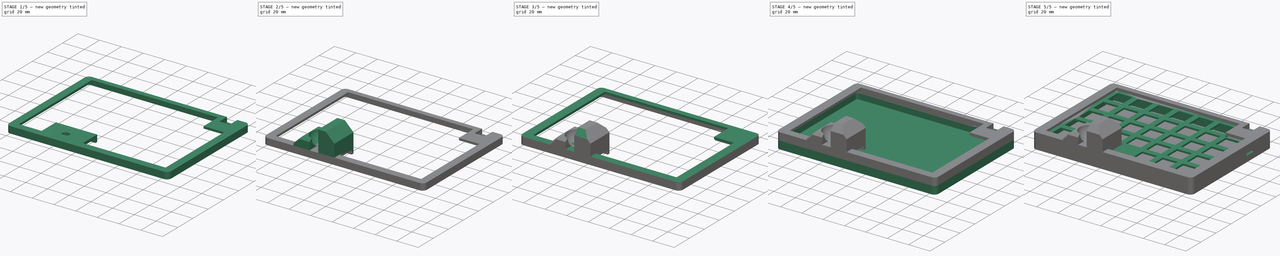
[diagram: build sequence overview — one tinted view per stage of 5, left to right]
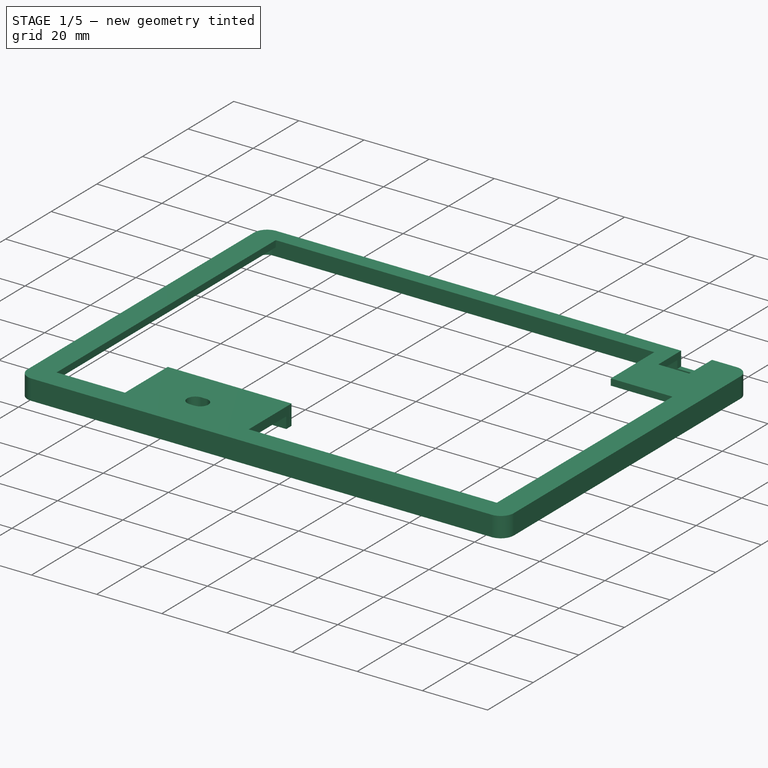
[diagram: stage 1 of 5 — iso view after this stage's code; geometry added in this stage tinted green]
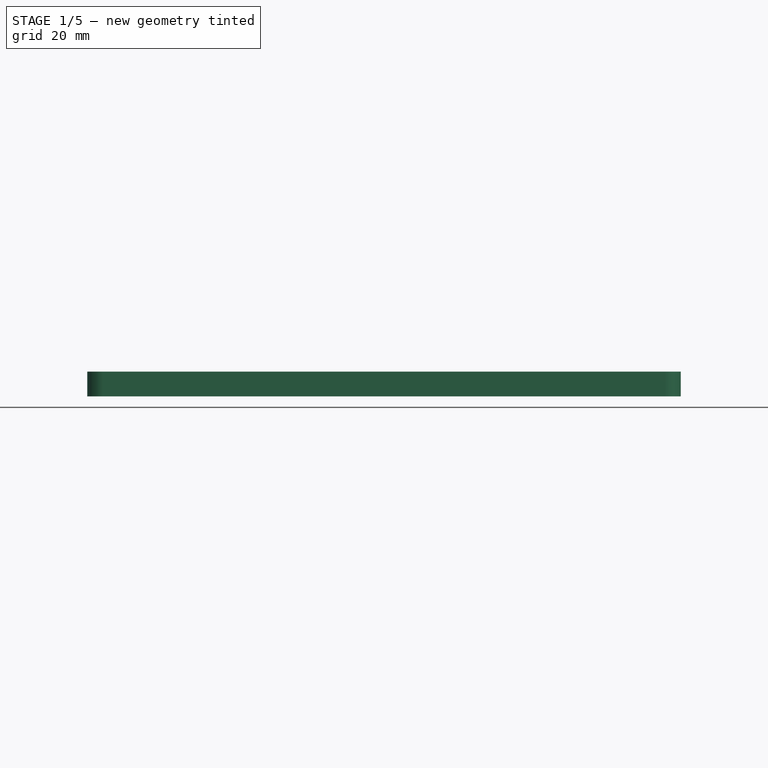
[diagram: stage 1 of 5 — front view after this stage's code; geometry added in this stage tinted green]
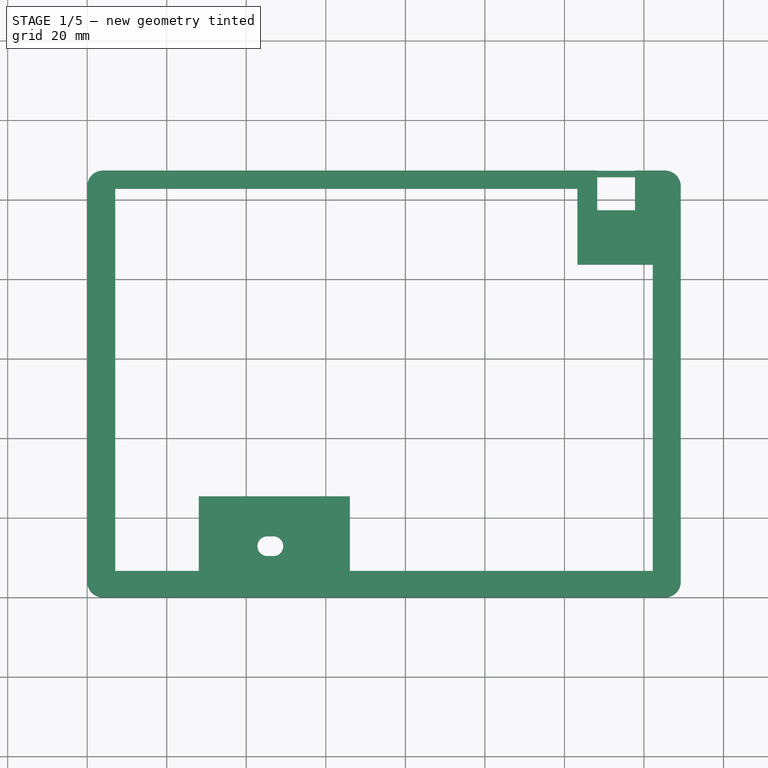
[diagram: stage 1 of 5 — top view after this stage's code; geometry added in this stage tinted green]
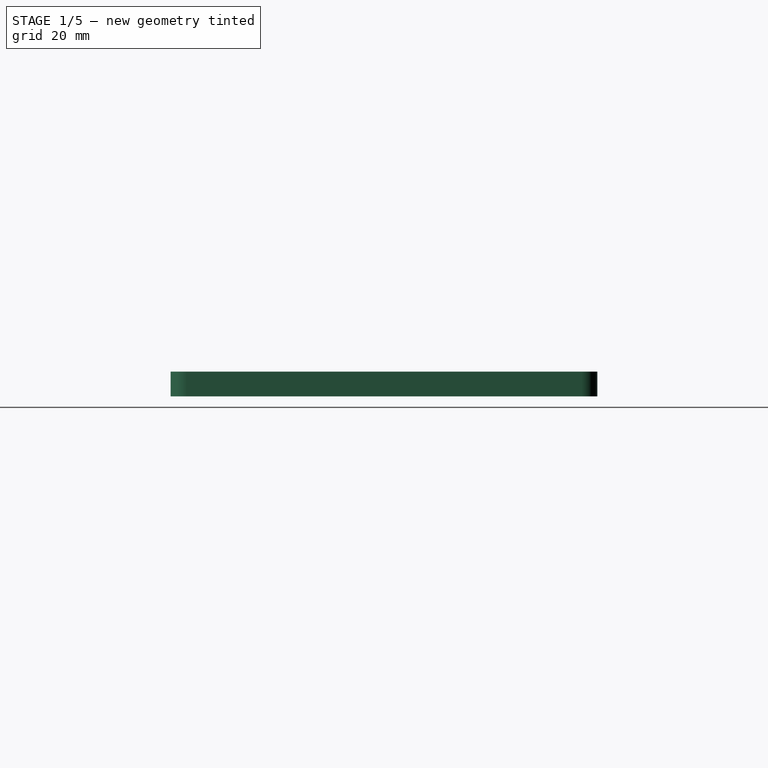
[diagram: stage 1 of 5 — right view after this stage's code; geometry added in this stage tinted green]
FCSTD DOCUMENT  (FreeCAD 1.0R39109 (Git))
Label: right_v3
License: All rights reserved
LicenseURL: https://en.wikipedia.org/wiki/All_rights_reserved
objects: Sketcher::SketchObject×36, PartDesign::Pad×21, PartDesign::Pocket×14, PartDesign::Chamfer×11, Measure::MeasureDistance×10, Measure::MeasureLength×7, PartDesign::Body×4, PartDesign::Line×1, PartDesign::Groove×1, PartDesign::Point×1, PartDesign::SubtractiveSphere×1, PartDesign::PolarPattern×1, App::DocumentObjectGroup×1
note: 224 computed .brp shape members not serialized (recipe doc carries the construction recipe); baked Part::Feature solids carry a one-line shape summary decoded from their .brp

FEATURE [PartDesign::Body] Body002  label="TopCover"
  AllowCompound = false
  Group = -> [Sketch010,Pad006,Sketch011,Pad007,Sketch012,Pocket004,Sketch013,Pocket005,Sketch014,Pocket006,Sketch015,Pocket007,Sketch016,Pad008,Chamfer,Sketch017,Pad009,Chamfer001,Sketch018,Pocket008,Sketch022,Pad011,Chamfer002,Sketch023,Pad012]
  Origin = -> Origin002
  Tip = -> Pad012
FEATURE [Measure::MeasureLength] Length  label="Length: 7.10 mm"
  Elements = -> [Body002]
  Length = 7.1
FEATURE [Measure::MeasureDistance] Distance  label="Distance: 149.26 mm"
  Distance = 149.26
  DistanceX = 149.26
  DistanceY = 8.669e-13
  DistanceZ = 0
  Element1 = -> Body002 [Chamfer001.Edge131]
  Element2 = -> Body002 [Chamfer001.Edge123]
  Position1 = (0,103.29,14.5)
  Position2 = (149.26,103.29,14.5)
FEATURE [Sketcher::SketchObject] Sketch024
  ArcFitTolerance = 1e-06
  AttachmentOffset = pos=(0,0,7.4) rot=(0,0,1;0rad)
  AttachmentSupport = -> [XY_Plane003]
  FullyConstrained = true
  MakeInternals = false
  MapMode = 5
  Placement = pos=(0,0,7.4) rot=(0,0,1;0rad)
  sketch-geometry (24):
    g0: LineSegment StartX=149.26 StartY=103.29 StartZ=0 EndX=149.26 EndY=4 EndZ=0
    g1: LineSegment StartX=2.398e-13 StartY=103.29 StartZ=0 EndX=2.398e-13 EndY=4 EndZ=0
    g2: ArcOfCircle CenterX=4 CenterY=4 CenterZ=0 NormalX=0 NormalY=0 NormalZ=1 AngleXU=0 Radius=4 StartAngle=3.14159 EndAngle=4.71239
    g3: ArcOfCircle CenterX=4 CenterY=103.29 CenterZ=0 NormalX=0 NormalY=0 NormalZ=1 AngleXU=0 Radius=4 StartAngle=1.5708 EndAngle=3.14159
    g4: ArcOfCircle CenterX=145.26 CenterY=103.29 CenterZ=0 NormalX=0 NormalY=0 NormalZ=1 AngleXU=0 Radius=4 StartAngle=1e-16 EndAngle=1.5708
    g5: ArcOfCircle CenterX=145.26 CenterY=4 CenterZ=0 NormalX=0 NormalY=0 NormalZ=1 AngleXU=0 Radius=4 StartAngle=4.71239 EndAngle=6.28319
    g6: LineSegment StartX=4 StartY=107.29 StartZ=0 EndX=145.26 EndY=107.29 EndZ=0
    g7: LineSegment StartX=4 StartY=0 StartZ=0 EndX=145.26 EndY=-6.408e-13 EndZ=0
    g8: LineSegment StartX=4 StartY=105.69 StartZ=0 EndX=145.26 EndY=105.69 EndZ=0
    g9: LineSegment [constr] StartX=4 StartY=107.29 StartZ=0 EndX=4 EndY=105.69 EndZ=0
    g10: LineSegment StartX=1.6 StartY=103.29 StartZ=0 EndX=1.6 EndY=4 EndZ=0
    g11: LineSegment [constr] StartX=2.398e-13 StartY=4 StartZ=0 EndX=1.6 EndY=4 EndZ=0
    g12: LineSegment [constr] StartX=4 StartY=1.6 StartZ=0 EndX=4 EndY=0 EndZ=0
    g13: LineSegment StartX=147.66 StartY=103.29 StartZ=0 EndX=147.66 EndY=4 EndZ=0
    g14: LineSegment [constr] StartX=147.66 StartY=4 StartZ=0 EndX=149.26 EndY=4 EndZ=0
    g15: ArcOfCircle CenterX=145.26 CenterY=4 CenterZ=0 NormalX=0 NormalY=0 NormalZ=1 AngleXU=0 Radius=2.4 StartAngle=4.71239 EndAngle=6.28319
    g16: ArcOfCircle CenterX=4 CenterY=4 CenterZ=0 NormalX=0 NormalY=0 NormalZ=1 AngleXU=0 Radius=2.4 StartAngle=3.14159 EndAngle=4.71239
    g17: ArcOfCircle CenterX=4 CenterY=103.29 CenterZ=0 NormalX=0 NormalY=0 NormalZ=1 AngleXU=0 Radius=2.4 StartAngle=1.5708 EndAngle=3.14159
    g18: ArcOfCircle CenterX=145.26 CenterY=103.29 CenterZ=0 NormalX=0 NormalY=0 NormalZ=1 AngleXU=0 Radius=2.4 StartAngle=2e-16 EndAngle=1.5708
    g19: LineSegment StartX=66.05 StartY=1.6 StartZ=0 EndX=66.05 EndY=25.35 EndZ=0
    g20: LineSegment StartX=66.05 StartY=25.35 StartZ=0 EndX=38.05 EndY=25.35 EndZ=0
    g21: LineSegment StartX=38.05 StartY=25.35 StartZ=0 EndX=38.05 EndY=1.6 EndZ=0
    g22: LineSegment StartX=4 StartY=1.6 StartZ=0 EndX=38.05 EndY=1.6 EndZ=0
    g23: LineSegment StartX=66.05 StartY=1.6 StartZ=0 EndX=145.26 EndY=1.6 EndZ=0
  constraints (68):
    c: Vertical(g0)
    c: Vertical(g1)
    c: Radius(g3) = 4
    c: Radius(g2) = 4
    c: Radius(g5) = 4
    c: Radius(g4) = 4
    c: Tangent(g3,g1) = -1.5708
    c: Tangent(g2,g1) = -1.5708
    c: Tangent(g5,g0) = 1.5708
    c: Tangent(g4,g0) = 1.5708
    c: DistanceX(g3,g4) = 141.26
    c: DistanceY(g1,g1) = 99.29
    c: DistanceX(g-1,g1) = 0
    c: Coincident(g6,g3)
    c: Horizontal(g6)
    c: DistanceX(g2,g5) = 141.26
    c: Tangent(g6,g4) = 1.5708
    c: DistanceY(g5,g4) = 107.29
    c: PointOnObject(g2,g-1)
    c: Coincident(g7,g2)
    c: Coincident(g7,g5)
    c: Angle(g2) = 1.5708
    c: Angle(g5) = 1.5708
    c: Horizontal(g8)
    c: Equal(g6,g8)
    c: Coincident(g9,g3)
    c: Coincident(g9,g8)
    c: Vertical(g9)
    c: DistanceY(g8,g3) = 1.6
    c: Vertical(g10)
    c: Equal(g1,g10)
    c: Coincident(g11,g1)
    c: Coincident(g11,g10)
    c: Horizontal(g11)
    c: Coincident(g12,g2)
    c: Vertical(g12)
    c: Equal(g13,g0)
    c: Coincident(g14,g13)
    c: Coincident(g14,g0)
    c: Horizontal(g14)
    c: Coincident(g15,g5)
    c: Coincident(g15,g13)
    c: Coincident(g16,g2)
    c: Coincident(g16,g10)
    c: Coincident(g17,g3)
    c: Coincident(g17,g8)
    c: Coincident(g17,g10)
    c: Coincident(g18,g4)
    c: Coincident(g18,g8)
    c: Coincident(g18,g13)
    c: Coincident(g19,g20)
    c: Coincident(g20,g21)
    c: Horizontal(g20)
    c: Vertical(g19)
    c: Vertical(g21)
    c: DistanceX(g1,g21) = 38.05
    c: DistanceY(g21,g20) = 23.75
    c: DistanceX(g20,g19) = 28
    c: Coincident(g22,g16)
    c: Coincident(g22,g21)
    c: Horizontal(g22)
    c: Coincident(g23,g19)
    c: Coincident(g23,g15)
    c: Horizontal(g23)
    c: Equal(g7,g6)
    c: DistanceY(g2,g12) = 1.6
    c: DistanceY(g5,g15) = 1.6
    c: Angle(g16) = 1.5708
FEATURE [Measure::MeasureLength] Length003  label="Length003: 2.50 mm"
  Elements = -> [Body]
  Length = 2.5
FEATURE [Measure::MeasureLength] Length004  label="Length004: 1.60 mm"
  Elements = -> [Body001]
  Length = 1.6
FEATURE [PartDesign::Pad] Pad013
  Direction = (0,0,1)
  Length = 4.2
  Length2 = 10
  Profile = -> Sketch024
  ReferenceAxis = -> Sketch024 [N_Axis]
  Refine = true
  Suppressed = false
  Type = 0
FEATURE [Sketcher::SketchObject] Sketch025
  ArcFitTolerance = 1e-06
  AttachmentSupport = -> [Pad013]
  FullyConstrained = true
  MakeInternals = false
  MapMode = 5
  Placement = pos=(0,0,11.6) rot=(0,0,1;0rad)
  sketch-geometry (18):
    g0: LineSegment StartX=149.26 StartY=103.29 StartZ=0 EndX=149.26 EndY=4 EndZ=0
    g1: LineSegment StartX=0 StartY=103.29 StartZ=0 EndX=0 EndY=4 EndZ=0
    g2: ArcOfCircle CenterX=4 CenterY=4 CenterZ=0 NormalX=0 NormalY=0 NormalZ=1 AngleXU=0 Radius=4 StartAngle=3.14159 EndAngle=4.71239
    g3: ArcOfCircle CenterX=4 CenterY=103.29 CenterZ=0 NormalX=0 NormalY=0 NormalZ=1 AngleXU=0 Radius=4 StartAngle=1.5708 EndAngle=3.14159
    g4: ArcOfCircle CenterX=145.26 CenterY=103.29 CenterZ=0 NormalX=0 NormalY=0 NormalZ=1 AngleXU=0 Radius=4 StartAngle=5e-16 EndAngle=1.5708
    g5: ArcOfCircle CenterX=145.26 CenterY=4 CenterZ=0 NormalX=0 NormalY=0 NormalZ=1 AngleXU=0 Radius=4 StartAngle=4.71239 EndAngle=6.28319
    g6: LineSegment StartX=4 StartY=107.29 StartZ=0 EndX=145.26 EndY=107.29 EndZ=0
    g7: LineSegment StartX=4 StartY=4.046e-13 StartZ=0 EndX=145.26 EndY=-2.647e-13 EndZ=0
    g8: LineSegment StartX=7.05 StartY=102.69 StartZ=0 EndX=7.05 EndY=6.6 EndZ=0
    g9: LineSegment StartX=7.05 StartY=102.69 StartZ=0 EndX=123.26 EndY=102.69 EndZ=0
    g10: LineSegment StartX=123.26 StartY=102.69 StartZ=0 EndX=123.26 EndY=83.63 EndZ=0
    g11: LineSegment StartX=123.26 StartY=83.63 StartZ=0 EndX=142.21 EndY=83.63 EndZ=0
    g12: LineSegment StartX=142.21 StartY=83.63 StartZ=0 EndX=142.21 EndY=6.6 EndZ=0
    g13: LineSegment StartX=142.21 StartY=6.6 StartZ=0 EndX=66.05 EndY=6.6 EndZ=0
    g14: LineSegment StartX=7.05 StartY=6.6 StartZ=0 EndX=28.05 EndY=6.6 EndZ=0
    g15: LineSegment StartX=28.05 StartY=6.6 StartZ=0 EndX=28.05 EndY=25.35 EndZ=0
    g16: LineSegment StartX=28.05 StartY=25.35 StartZ=0 EndX=66.05 EndY=25.35 EndZ=0
    g17: LineSegment StartX=66.05 StartY=25.35 StartZ=0 EndX=66.05 EndY=6.6 EndZ=0
  constraints (53):
    c: Vertical(g0)
    c: Vertical(g1)
    c: Radius(g3) = 4
    c: Radius(g2) = 4
    c: Radius(g5) = 4
    c: Radius(g4) = 4
    c: Tangent(g3,g1) = -1.5708
    c: Tangent(g2,g1) = -1.5708
    c: Tangent(g5,g0) = 1.5708
    c: Tangent(g4,g0) = 1.5708
    c: DistanceX(g3,g4) = 141.26
    c: DistanceY(g1,g1) = 99.29
    c: DistanceX(g-1,g1) = 0
    c: Coincident(g6,g3)
    c: Horizontal(g6)
    c: DistanceX(g2,g5) = 141.26
    c: Tangent(g6,g4) = 1.5708
    c: DistanceY(g5,g4) = 107.29
    c: PointOnObject(g2,g-1)
    c: Coincident(g7,g2)
    c: Coincident(g7,g5)
    c: Angle(g2) = 1.5708
    c: Angle(g5) = 1.5708
    c: Vertical(g8)
    c: Coincident(g9,g8)
    c: Horizontal(g9)
    c: Coincident(g10,g9)
    c: Vertical(g10)
    c: Coincident(g11,g10)
    c: Horizontal(g11)
    c: Vertical(g12)
    c: Coincident(g13,g12)
    c: Horizontal(g13)
    c: Coincident(g14,g8)
    c: Horizontal(g14)
    c: DistanceY(g2,g8) = 6.6
    c: DistanceY(g5,g12) = 6.6
    c: DistanceY(g8,g3) = 4.6
    c: DistanceX(g1,g8) = 7.05
    c: DistanceX(g12,g0) = 7.05
    c: Coincident(g11,g12)
    c: DistanceX(g1,g14) = 28.05
    c: DistanceX(g14,g13) = 38
    c: Coincident(g14,g15)
    c: Vertical(g15)
    c: Coincident(g15,g16)
    c: Horizontal(g16)
    c: Coincident(g16,g17)
    c: Coincident(g17,g13)
    c: Vertical(g17)
    c: DistanceY(g14,g15) = 18.75
    c: DistanceX(g10,g11) = 18.95
    c: DistanceY(g10,g9) = 19.06
FEATURE [PartDesign::Pad] Pad014
  BaseFeature = -> Pad013
  Direction = (0,0,1)
  Length = 2
  Length2 = 10
  Profile = -> Sketch025
  ReferenceAxis = -> Sketch025 [N_Axis]
  Refine = true
  Suppressed = false
  Type = 0
FEATURE [Sketcher::SketchObject] Sketch026
  ArcFitTolerance = 1e-06
  AttachmentSupport = -> [Pad014]
  FullyConstrained = true
  MakeInternals = false
  MapMode = 5
  Placement = pos=(66.05,0,0) rot=(0.57735,0.57735,0.57735;2.0944rad)
  sketch-geometry (4):
    g0: LineSegment StartX=3.55 StartY=7.4 StartZ=0 EndX=23.05 EndY=7.4 EndZ=0
    g1: LineSegment StartX=23.05 StartY=7.4 StartZ=0 EndX=23.05 EndY=10.9 EndZ=0
    g2: LineSegment StartX=23.05 StartY=10.9 StartZ=0 EndX=3.55 EndY=10.9 EndZ=0
    g3: LineSegment StartX=3.55 StartY=10.9 StartZ=0 EndX=3.55 EndY=7.4 EndZ=0
  constraints (12):
    c: Coincident(g0,g1)
    c: Coincident(g1,g2)
    c: Coincident(g2,g3)
    c: Coincident(g3,g0)
    c: Horizontal(g0)
    c: Horizontal(g2)
    c: Vertical(g1)
    c: Vertical(g3)
    c: DistanceX(g2,g1) = 19.5
    c: DistanceY(g0,g2) = 3.5
    c: DistanceX(g-1,g0) = 3.55
    c: DistanceY(g-1,g0) = 7.4
FEATURE [PartDesign::Pocket] Pocket010
  BaseFeature = -> Pad014
  Direction = (-1,0,0)
  Length = 26
  Length2 = 5
  Profile = -> Sketch026
  ReferenceAxis = -> Sketch026 [N_Axis]
  Refine = true
  Suppressed = false
  Type = 0
FEATURE [Sketcher::SketchObject] Sketch027
  ArcFitTolerance = 1e-06
  AttachmentSupport = -> [Pocket010]
  ExternalGeometry = -> [Pocket010]
  FullyConstrained = true
  MakeInternals = false
  MapMode = 5
  Placement = pos=(0,0,11.6) rot=(1,0,0;3.14159rad)
  sketch-geometry (4):
    g0: LineSegment StartX=28.05 StartY=-25.35 StartZ=0 EndX=38.05 EndY=-25.35 EndZ=0
    g1: LineSegment StartX=38.05 StartY=-25.35 StartZ=0 EndX=38.05 EndY=-1.6 EndZ=0
    g2: LineSegment StartX=38.05 StartY=-1.6 StartZ=0 EndX=28.05 EndY=-1.6 EndZ=0
    g3: LineSegment StartX=28.05 StartY=-1.6 StartZ=0 EndX=28.05 EndY=-25.35 EndZ=0
  constraints (10):
    c: Coincident(g0,g1)
    c: Coincident(g1,g2)
    c: Coincident(g2,g3)
    c: Coincident(g3,g0)
    c: Horizontal(g0)
    c: Horizontal(g2)
    c: Vertical(g1)
    c: Vertical(g3)
    c: Coincident(g0,g-4)
    c: Coincident(g1,g-5)
FEATURE [PartDesign::Pad] Pad015
  BaseFeature = -> Pocket010
  Direction = (0,0,-1)
  Length = 4.2
  Length2 = 10
  Profile = -> Sketch027
  ReferenceAxis = -> Sketch027 [N_Axis]
  Refine = true
  Suppressed = false
  Type = 0
FEATURE [Sketcher::SketchObject] Sketch028
  ArcFitTolerance = 1e-06
  AttachmentSupport = -> [Pad015]
  ExternalGeometry = -> [Pad015]
  FullyConstrained = true
  MakeInternals = false
  MapMode = 5
  Placement = pos=(0,0,13.6) rot=(0,0,1;0rad)
  sketch-geometry (6):
    g0: GeomPoint [constr] X=46.05 Y=12.825 Z=0
    g1: ArcOfCircle CenterX=45.3 CenterY=12.825 CenterZ=0 NormalX=0 NormalY=0 NormalZ=1 AngleXU=0 Radius=2.5 StartAngle=1.5708 EndAngle=4.71239
    g2: ArcOfCircle CenterX=46.8 CenterY=12.825 CenterZ=0 NormalX=0 NormalY=0 NormalZ=1 AngleXU=0 Radius=2.5 StartAngle=4.71239 EndAngle=7.85398
    g3: LineSegment StartX=45.3 StartY=15.325 StartZ=0 EndX=46.8 EndY=15.325 EndZ=0
    g4: LineSegment StartX=45.3 StartY=10.325 StartZ=0 EndX=46.8 EndY=10.325 EndZ=0
    g5: LineSegment [constr] StartX=45.3 StartY=12.825 StartZ=0 EndX=46.8 EndY=12.825 EndZ=0
  constraints (13):
    c: Tangent(g1,g3) = 1.5708
    c: Tangent(g1,g4) = -1.5708
    c: Tangent(g2,g3) = 1.5708
    c: Tangent(g2,g4) = -1.5708
    c: Equal(g1,g2)
    c: Symmetric(g1,g2,g0)
    c: Coincident(g5,g1)
    c: Coincident(g5,g2)
    c: Horizontal(g5)
    c: DistanceX(g1,g2) = 1.5
    c: Diameter(g2) = 5
    c: DistanceY(g0,g-3) = 12.525
    c: DistanceX(g-3,g0) = 18
FEATURE [PartDesign::Pocket] Pocket011
  BaseFeature = -> Pad015
  Direction = (0,0,-1)
  Length = 2.7
  Length2 = 5
  Profile = -> Sketch028
  ReferenceAxis = -> Sketch028 [N_Axis]
  Refine = true
  Suppressed = false
  Type = 0
FEATURE [Sketcher::SketchObject] Sketch029
  ArcFitTolerance = 1e-06
  AttachmentSupport = -> [Pocket011]
  ExternalGeometry = -> [Pocket011]
  FullyConstrained = true
  MakeInternals = false
  MapMode = 5
  Placement = pos=(0,0,13.6) rot=(0,0,1;0rad)
  sketch-geometry (4):
    g0: LineSegment StartX=128.26 StartY=107.29 StartZ=0 EndX=128.26 EndY=97.29 EndZ=0
    g1: LineSegment StartX=128.26 StartY=97.29 StartZ=0 EndX=137.76 EndY=97.29 EndZ=0
    g2: LineSegment StartX=137.76 StartY=97.29 StartZ=0 EndX=137.76 EndY=107.29 EndZ=0
    g3: LineSegment StartX=137.76 StartY=107.29 StartZ=0 EndX=128.26 EndY=107.29 EndZ=0
  constraints (12):
    c: Coincident(g0,g1)
    c: Coincident(g1,g2)
    c: Coincident(g2,g3)
    c: Coincident(g3,g0)
    c: Vertical(g0)
    c: Vertical(g2)
    c: Horizontal(g1)
    c: Horizontal(g3)
    c: Distance(g0,g2) = 9.5
    c: Distance(g1,g3) = 10
    c: PointOnObject(g2,g-3)
    c: DistanceX(g2,g-4) = 11.5
FEATURE [PartDesign::Pocket] Pocket012
  BaseFeature = -> Pocket011
  Direction = (0,0,-1)
  Length = 4.4
  Length2 = 5
  Profile = -> Sketch029
  ReferenceAxis = -> Sketch029 [N_Axis]
  Refine = true
  Suppressed = false
  Type = 0
FEATURE [Sketcher::SketchObject] Sketch030
  ArcFitTolerance = 1e-06
  AttachmentOffset = pos=(0,0,-1.6) rot=(0,0,1;0rad)
  AttachmentSupport = -> [Pocket012]
  ExternalGeometry = -> [Pocket012]
  FullyConstrained = true
  MakeInternals = false
  MapMode = 5
  Placement = pos=(1.6,-2e-16,6.13e-14) rot=(0.57735,-0.57735,-0.57735;2.0944rad)
  sketch-geometry (8):
    g0: LineSegment StartX=-98.24 StartY=8.4 StartZ=0 EndX=-98.24 EndY=7.4 EndZ=0
    g1: LineSegment StartX=-98.24 StartY=7.4 StartZ=0 EndX=-93.74 EndY=7.4 EndZ=0
    g2: LineSegment StartX=-93.74 StartY=7.4 StartZ=0 EndX=-93.74 EndY=8.4 EndZ=0
    g3: LineSegment StartX=-93.74 StartY=8.4 StartZ=0 EndX=-98.24 EndY=8.4 EndZ=0
    g4: LineSegment StartX=-13.55 StartY=7.4 StartZ=0 EndX=-9.05 EndY=7.4 EndZ=0
    g5: LineSegment StartX=-9.05 StartY=7.4 StartZ=0 EndX=-9.05 EndY=8.4 EndZ=0
    g6: LineSegment StartX=-9.05 StartY=8.4 StartZ=0 EndX=-13.55 EndY=8.4 EndZ=0
    g7: LineSegment StartX=-13.55 StartY=8.4 StartZ=0 EndX=-13.55 EndY=7.4 EndZ=0
  constraints (24):
    c: Coincident(g0,g1)
    c: Coincident(g1,g2)
    c: Coincident(g2,g3)
    c: Coincident(g3,g0)
    c: Vertical(g0)
    c: Vertical(g2)
    c: Horizontal(g1)
    c: Horizontal(g3)
    c: Distance(g0,g2) = 4.5
    c: Distance(g1,g3) = 1
    c: Coincident(g4,g5)
    c: Coincident(g5,g6)
    c: Coincident(g6,g7)
    c: Coincident(g7,g4)
    c: Horizontal(g4)
    c: Horizontal(g6)
    c: Vertical(g5)
    c: Vertical(g7)
    c: Distance(g5,g7) = 4.5
    c: Distance(g4,g6) = 1
    c: PointOnObject(g0,g-3)
    c: DistanceX(g-4,g0) = 9.05
    c: PointOnObject(g4,g-3)
    c: DistanceX(g4,g-5) = 9.05
FEATURE [PartDesign::Pad] Pad016
  BaseFeature = -> Pocket012
  Direction = (-1,1e-16,-3.83e-14)
  Length = 1
  Length2 = 10
  Profile = -> Sketch030
  ReferenceAxis = -> Sketch030 [N_Axis]
  Refine = true
  Reversed = true
  Suppressed = false
  Type = 0
FEATURE [PartDesign::Chamfer] Chamfer003
  Angle = 45
  Base = -> Pad016 [Edge149,Edge150]
  BaseFeature = -> Pad016
  ChamferType = 0
  FlipDirection = false
  Refine = true
  Size = 0.99
  Size2 = 1
  SupportTransform = false
  Suppressed = false
  UseAllEdges = false
FEATURE [Sketcher::SketchObject] Sketch031
  ArcFitTolerance = 1e-06
  AttachmentOffset = pos=(0,0,-1.6) rot=(0,0,1;0rad)
  AttachmentSupport = -> [Chamfer003]
  ExternalGeometry = -> [Chamfer003]
  FullyConstrained = true
  MakeInternals = false
  MapMode = 5
  Placement = pos=(147.66,-2e-16,6.0728e-12) rot=(0.57735,0.57735,0.57735;2.0944rad)
  sketch-geometry (8):
    g0: LineSegment StartX=9.05 StartY=7.4 StartZ=0 EndX=13.55 EndY=7.4 EndZ=0
    g1: LineSegment StartX=13.55 StartY=7.4 StartZ=0 EndX=13.55 EndY=8.4 EndZ=0
    g2: LineSegment StartX=13.55 StartY=8.4 StartZ=0 EndX=9.05 EndY=8.4 EndZ=0
    g3: LineSegment StartX=9.05 StartY=8.4 StartZ=0 EndX=9.05 EndY=7.4 EndZ=0
    g4: LineSegment StartX=54.04 StartY=7.4 StartZ=0 EndX=58.54 EndY=7.4 EndZ=0
    g5: LineSegment StartX=58.54 StartY=7.4 StartZ=0 EndX=58.54 EndY=8.4 EndZ=0
    g6: LineSegment StartX=58.54 StartY=8.4 StartZ=0 EndX=54.04 EndY=8.4 EndZ=0
    g7: LineSegment StartX=54.04 StartY=8.4 StartZ=0 EndX=54.04 EndY=7.4 EndZ=0
  constraints (24):
    c: Coincident(g0,g1)
    c: Coincident(g1,g2)
    c: Coincident(g2,g3)
    c: Coincident(g3,g0)
    c: Horizontal(g0)
    c: Horizontal(g2)
    c: Vertical(g1)
    c: Vertical(g3)
    c: Distance(g1,g3) = 4.5
    c: Distance(g0,g2) = 1
    c: Coincident(g4,g5)
    c: Coincident(g5,g6)
    c: Coincident(g6,g7)
    c: Coincident(g7,g4)
    c: Horizontal(g4)
    c: Horizontal(g6)
    c: Vertical(g5)
    c: Vertical(g7)
    c: Distance(g5,g7) = 4.5
    c: Distance(g4,g6) = 1
    c: PointOnObject(g0,g-3)
    c: DistanceX(g-4,g0) = 9.05
    c: PointOnObject(g4,g-3)
    c: DistanceX(g4,g-5) = 48.75
FEATURE [PartDesign::Pad] Pad017
  BaseFeature = -> Chamfer003
  Direction = (1,1e-16,4.1e-14)
  Length = 1
  Length2 = 10
  Profile = -> Sketch031
  ReferenceAxis = -> Sketch031 [N_Axis]
  Refine = true
  Reversed = true
  Suppressed = false
  Type = 0
FEATURE [PartDesign::Chamfer] Chamfer004
  Angle = 45
  Base = -> Pad017 [Edge153,Edge154]
  BaseFeature = -> Pad017
  ChamferType = 0
  FlipDirection = false
  Refine = true
  Size = 0.99
  Size2 = 1
  SupportTransform = false
  Suppressed = false
  UseAllEdges = false
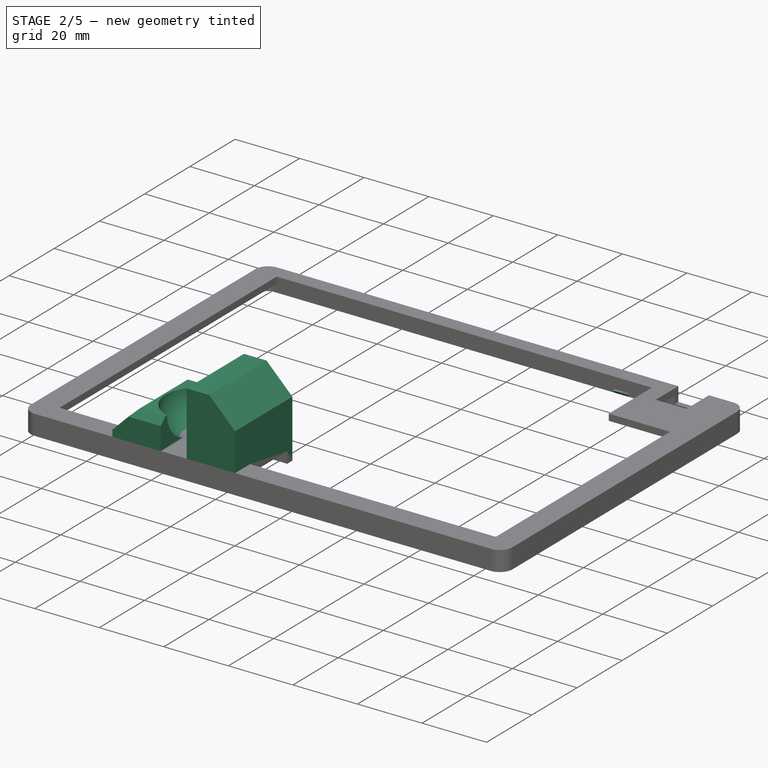
[diagram: stage 2 of 5 — iso view after this stage's code; geometry added in this stage tinted green]
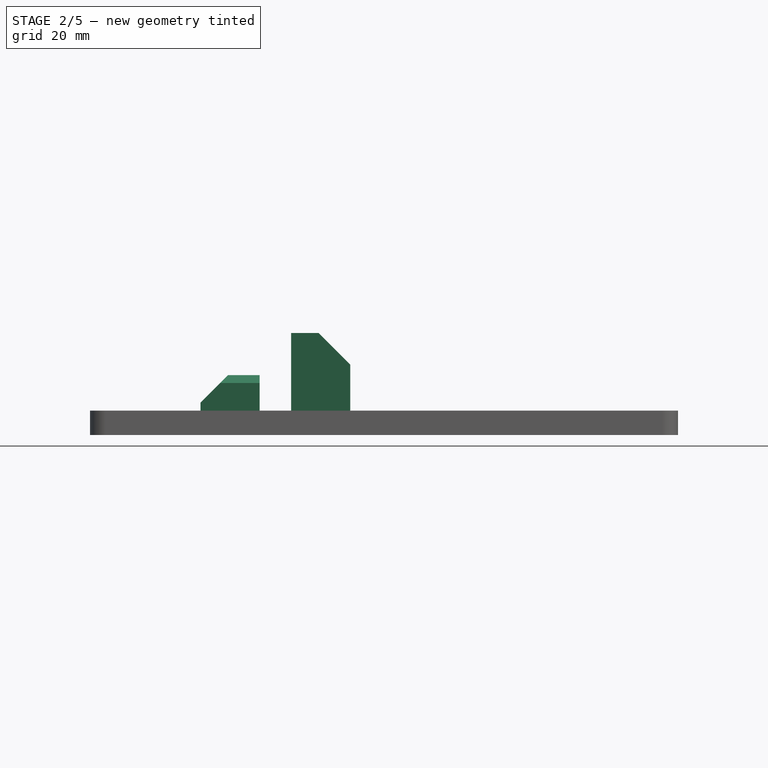
[diagram: stage 2 of 5 — front view after this stage's code; geometry added in this stage tinted green]
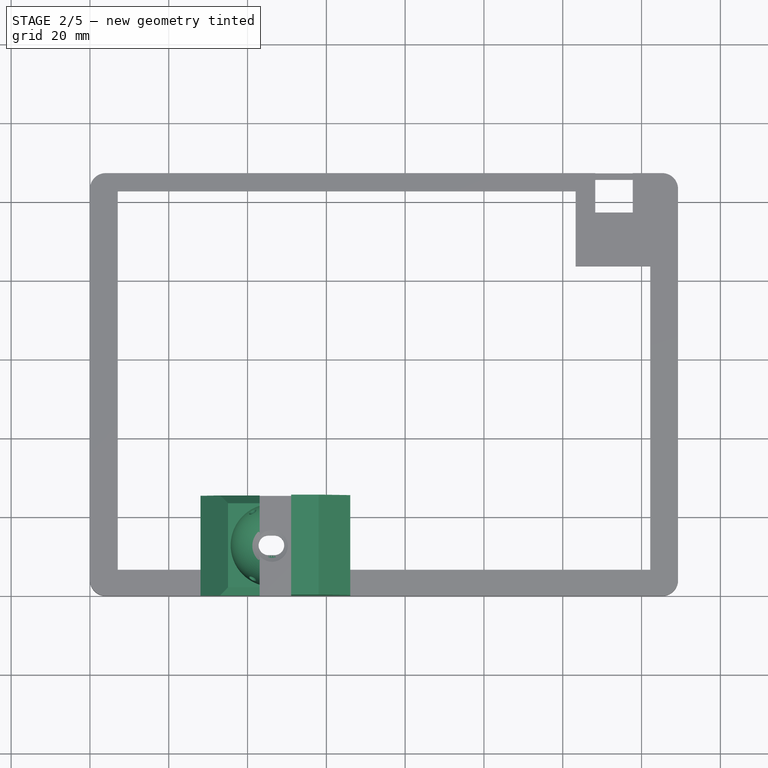
[diagram: stage 2 of 5 — top view after this stage's code; geometry added in this stage tinted green]
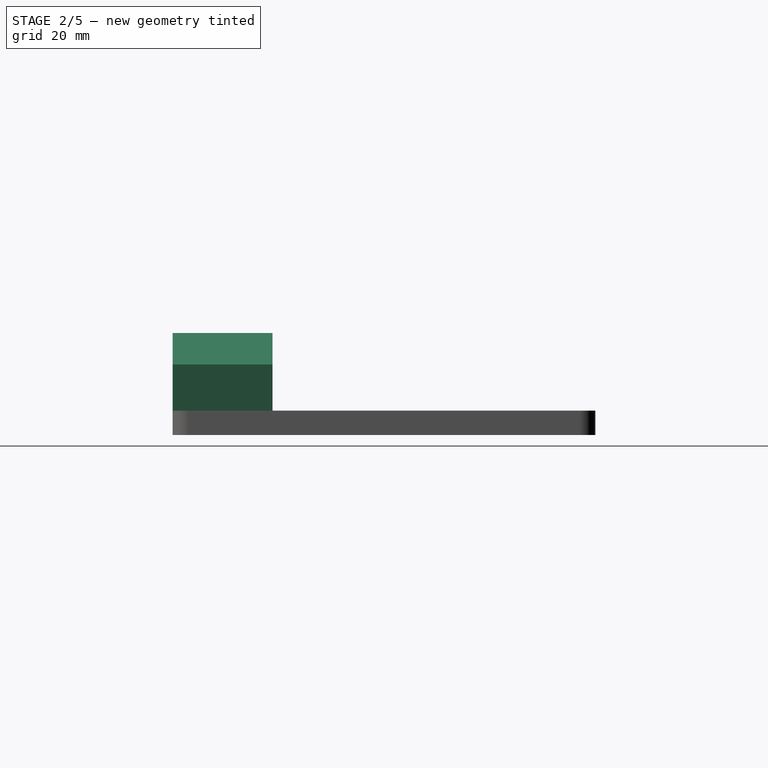
[diagram: stage 2 of 5 — right view after this stage's code; geometry added in this stage tinted green]
FEATURE [Sketcher::SketchObject] Sketch032
  ArcFitTolerance = 1e-06
  AttachmentOffset = pos=(0,0,-1.6) rot=(0,0,1;0rad)
  AttachmentSupport = -> [Chamfer004]
  ExternalGeometry = -> [Chamfer004]
  FullyConstrained = true
  MakeInternals = false
  MapMode = 5
  Placement = pos=(0,105.69,-9.6221e-12) rot=(0,0.707107,0.707107;3.14159rad)
  sketch-geometry (4):
    g0: LineSegment StartX=-114.21 StartY=7.4 StartZ=0 EndX=-109.71 EndY=7.4 EndZ=0
    g1: LineSegment StartX=-109.71 StartY=7.4 StartZ=0 EndX=-109.71 EndY=8.4 EndZ=0
    g2: LineSegment StartX=-109.71 StartY=8.4 StartZ=0 EndX=-114.21 EndY=8.4 EndZ=0
    g3: LineSegment StartX=-114.21 StartY=8.4 StartZ=0 EndX=-114.21 EndY=7.4 EndZ=0
  constraints (12):
    c: Coincident(g0,g1)
    c: Coincident(g1,g2)
    c: Coincident(g2,g3)
    c: Coincident(g3,g0)
    c: Horizontal(g0)
    c: Horizontal(g2)
    c: Vertical(g1)
    c: Vertical(g3)
    c: Distance(g1,g3) = 4.5
    c: Distance(g0,g2) = 1
    c: PointOnObject(g0,g-3)
    c: DistanceX(g-4,g0) = 35.05
FEATURE [PartDesign::Pad] Pad018
  BaseFeature = -> Chamfer004
  Direction = (0,1,-9.09e-14)
  Length = 1
  Length2 = 10
  Profile = -> Sketch032
  ReferenceAxis = -> Sketch032 [N_Axis]
  Refine = true
  Reversed = true
  Suppressed = false
  Type = 0
FEATURE [PartDesign::Chamfer] Chamfer005
  Angle = 45
  Base = -> Pad018 [Edge187]
  BaseFeature = -> Pad018
  ChamferType = 0
  FlipDirection = false
  Refine = true
  Size = 0.99
  Size2 = 1
  SupportTransform = false
  Suppressed = false
  UseAllEdges = false
FEATURE [Sketcher::SketchObject] Sketch033
  ArcFitTolerance = 1e-06
  AttachmentSupport = -> [Chamfer005]
  ExternalGeometry = -> [Chamfer005]
  FullyConstrained = true
  MakeInternals = false
  MapMode = 5
  Placement = pos=(0,0,13.6) rot=(0,0,1;0rad)
  sketch-geometry (6):
    g0: GeomPoint [constr] X=46.05 Y=12.825 Z=0
    g1: Circle [constr] CenterX=46.05 CenterY=12.825 CenterZ=0 NormalX=0 NormalY=0 NormalZ=1 AngleXU=0 Radius=9.5
    g2: LineSegment StartX=66.05 StartY=25.35 StartZ=0 EndX=51.05 EndY=25.35 EndZ=0
    g3: LineSegment StartX=51.05 StartY=25.35 StartZ=0 EndX=51.05 EndY=-2.771e-13 EndZ=0
    g4: LineSegment StartX=51.05 StartY=-2.771e-13 StartZ=0 EndX=66.05 EndY=-2.771e-13 EndZ=0
    g5: LineSegment StartX=66.05 StartY=-2.771e-13 StartZ=0 EndX=66.05 EndY=25.35 EndZ=0
  constraints (14):
    c: Symmetric(g-6,g-7,g0)
    c: Diameter(g1) = 19
    c: Coincident(g1,g0)
    c: Coincident(g2,g3)
    c: Coincident(g3,g4)
    c: Coincident(g4,g5)
    c: Coincident(g5,g2)
    c: Horizontal(g2)
    c: Horizontal(g4)
    c: Vertical(g3)
    c: Vertical(g5)
    c: Coincident(g2,g-5)
    c: PointOnObject(g3,g-3)
    c: DistanceX(g0,g2) = 5
FEATURE [PartDesign::Pad] Pad019
  BaseFeature = -> Chamfer005
  Direction = (0,0,1)
  Length = 19.7
  Length2 = 10
  Profile = -> Sketch033
  ReferenceAxis = -> Sketch033 [N_Axis]
  Refine = true
  Suppressed = false
  Type = 0
FEATURE [PartDesign::Line] DatumLine
  AttacherType = Attacher::AttachEngineLine
  Length = 20
  MapMode = 44
  Placement = pos=(46.2,12.674,3.2e-14) rot=(0,0,1;0rad)
  ResizeMode = 0
FEATURE [Sketcher::SketchObject] Sketch035
  ArcFitTolerance = 1e-06
  FullyConstrained = true
  MakeInternals = false
  MapMode = 5
  Placement = pos=(0,0,13.6) rot=(0,0,1;0rad)
  sketch-geometry (5):
    g0: LineSegment StartX=28.05 StartY=25.35 StartZ=0 EndX=28.05 EndY=-2.309e-13 EndZ=0
    g1: LineSegment StartX=28.05 StartY=-2.294e-13 StartZ=0 EndX=43.05 EndY=-2.294e-13 EndZ=0
    g2: LineSegment StartX=43.05 StartY=-2.294e-13 StartZ=0 EndX=43.05 EndY=25.35 EndZ=0
    g3: LineSegment StartX=43.05 StartY=25.35 StartZ=0 EndX=28.05 EndY=25.35 EndZ=0
    g4: GeomPoint [constr] X=46.05 Y=12.825 Z=0
  constraints (12):
    c: Coincident(g0,g1)
    c: Coincident(g1,g2)
    c: Coincident(g2,g3)
    c: Coincident(g3,g0)
    c: Vertical(g0)
    c: Vertical(g2)
    c: Horizontal(g1)
    c: Horizontal(g3)
    c: Coincident(g0,g-5)
    c: Symmetric(g-3,g-4,g4)
    c: DistanceX(g1,g4) = 3
    c: PointOnObject(g1,g-6)
FEATURE [PartDesign::Pad] Pad020
  BaseFeature = -> Pad019
  Direction = (0,0,1)
  Length = 9
  Length2 = 10
  Profile = -> Sketch035
  ReferenceAxis = -> Sketch035 [N_Axis]
  Refine = true
  Suppressed = false
  Type = 0
FEATURE [Sketcher::SketchObject] Sketch036
  ArcFitTolerance = 1e-06
  AttachmentOffset = pos=(0,0,-19.85) rot=(0,0,1;0rad)
  AttachmentSupport = -> [Pad020]
  ExternalGeometry = -> [Pad020,DatumLine]
  FullyConstrained = false
  MakeInternals = false
  MapMode = 5
  Placement = pos=(46.2,0,1.68e-14) rot=(0.57735,0.57735,0.57735;2.0944rad)
  sketch-geometry (3):
    g0: ArcOfCircle CenterX=12.674 CenterY=23.3 CenterZ=0 NormalX=0 NormalY=0 NormalZ=1 AngleXU=0 Radius=10.5 StartAngle=4.71239 EndAngle=7.85398
    g1: LineSegment [constr] StartX=12.674 StartY=13.9 StartZ=0 EndX=12.674 EndY=10.9 EndZ=0
    g2: LineSegment StartX=12.674 StartY=33.8 StartZ=0 EndX=12.674 EndY=12.8 EndZ=0
  constraints (10):
    c: Radius(g0) = 10.5
    c: Vertical(g1)
    c: PointOnObject(g1,g-3)
    c: PointOnObject(g1,g-4)
    c: DistanceY(g1,g0) = 12.4
    c: Coincident(g2,g0)
    c: Coincident(g2,g0)
    c: Vertical(g2)
    c: Angle(g0) = 3.14159
    c: PointOnObject(g0,g1)
FEATURE [PartDesign::Groove] Groove
  Angle = 360
  Angle2 = 60
  Axis = (0,0,1)
  Base = (46.2,12.674,3.2e-14)
  BaseFeature = -> Pad020
  Profile = -> Sketch036
  ReferenceAxis = -> DatumLine
  Refine = true
  Suppressed = false
  Type = 0
FEATURE [PartDesign::Point] DatumPoint
  AttacherType = Attacher::AttachEnginePoint
  AttachmentSupport = -> [Sketch036]
  MapMode = 36
  Placement = pos=(46.2,12.674,23.3) rot=(0.57735,0.57735,-0.57735;2.0944rad)
FEATURE [PartDesign::SubtractiveSphere] Sphere
  Angle1 = -90
  Angle2 = 90
  Angle3 = 360
  AttacherType = Attacher::AttachEngine3D
  AttachmentOffset = pos=(10.17,0,-3.89) rot=(0,0,1;0rad)
  AttachmentSupport = -> [DatumPoint]
  BaseFeature = -> Groove
  MapMode = 1
  Placement = pos=(56.37,12.674,19.41) rot=(0,0,1;0rad)
  Radius = 1.1
  Refine = true
  Suppressed = false
FEATURE [PartDesign::PolarPattern] PolarPattern
  Angle = 360
  Axis = -> DatumLine
  BaseFeature = -> Sphere
  Mode = 0
  Occurrences = 3
  Offset = 120
  Originals = -> [Sphere]
  Placement = pos=(56.37,12.674,19.41) rot=(0,0,1;0rad)
  Refine = true
  Suppressed = false
  TransformMode = 0
FEATURE [PartDesign::Chamfer] Chamfer006
  Angle = 45
  Base = -> PolarPattern [Edge42]
  BaseFeature = -> PolarPattern
  ChamferType = 0
  FlipDirection = false
  Placement = pos=(56.37,12.674,19.41) rot=(0,0,1;0rad)
  Refine = true
  Size = 7
  Size2 = 1
  SupportTransform = false
  Suppressed = false
  UseAllEdges = false
FEATURE [PartDesign::Chamfer] Chamfer007
  Angle = 45
  Base = -> Chamfer006 [Edge69]
  BaseFeature = -> Chamfer006
  ChamferType = 0
  FlipDirection = false
  Placement = pos=(56.37,12.674,19.41) rot=(0,0,1;0rad)
  Refine = true
  Size = 8
  Size2 = 1
  SupportTransform = false
  Suppressed = false
  UseAllEdges = false
FEATURE [PartDesign::Chamfer] Chamfer008
  Angle = 45
  Base = -> Chamfer007 [Edge84,Edge9]
  BaseFeature = -> Chamfer007
  ChamferType = 0
  FlipDirection = false
  Placement = pos=(56.37,12.674,19.41) rot=(0,0,1;0rad)
  Refine = true
  Size = 2
  Size2 = 1
  SupportTransform = false
  Suppressed = false
  UseAllEdges = false
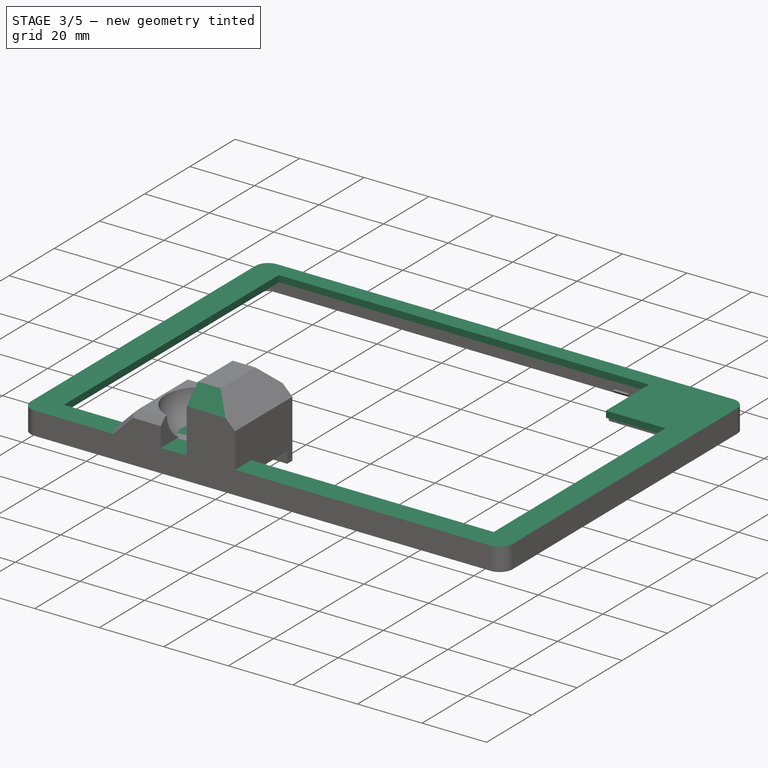
[diagram: stage 3 of 5 — iso view after this stage's code; geometry added in this stage tinted green]
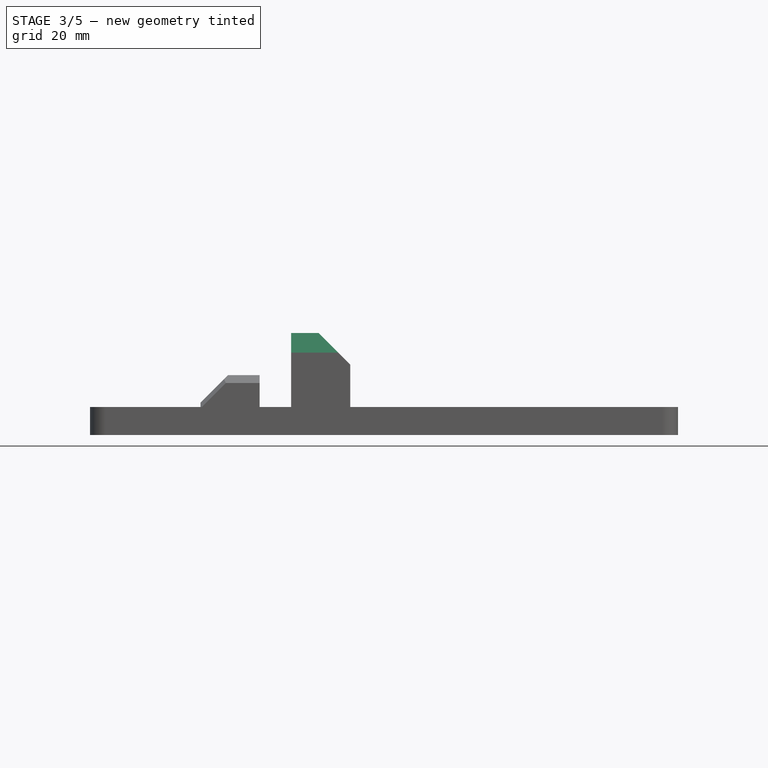
[diagram: stage 3 of 5 — front view after this stage's code; geometry added in this stage tinted green]
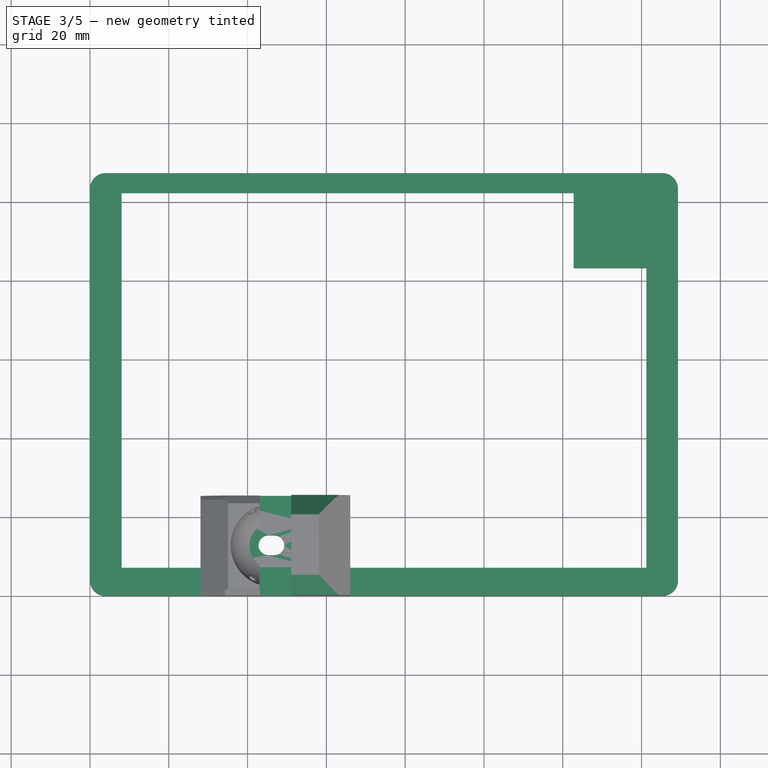
[diagram: stage 3 of 5 — top view after this stage's code; geometry added in this stage tinted green]
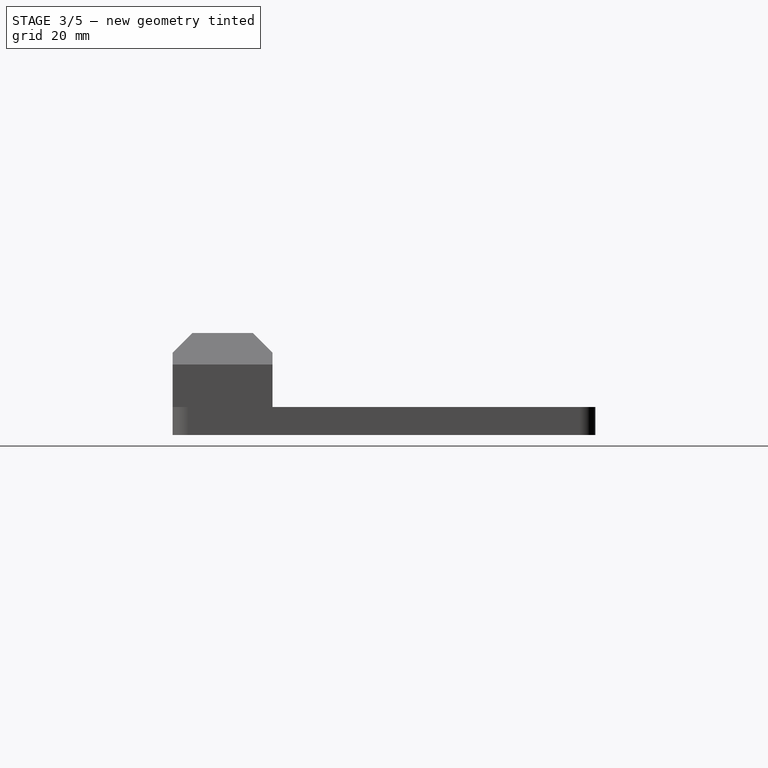
[diagram: stage 3 of 5 — right view after this stage's code; geometry added in this stage tinted green]
FEATURE [Sketcher::SketchObject] Sketch010
  ArcFitTolerance = 1e-06
  AttachmentOffset = pos=(0,0,7.4) rot=(0,0,1;0rad)
  AttachmentSupport = -> [XY_Plane002]
  FullyConstrained = true
  MakeInternals = false
  MapMode = 5
  Placement = pos=(0,0,7.4) rot=(0,0,1;0rad)
  sketch-geometry (24):
    g0: LineSegment StartX=149.26 StartY=103.29 StartZ=0 EndX=149.26 EndY=4 EndZ=0
    g1: LineSegment StartX=6.2e-15 StartY=103.29 StartZ=0 EndX=6.2e-15 EndY=4 EndZ=0
    g2: ArcOfCircle CenterX=4 CenterY=4 CenterZ=0 NormalX=0 NormalY=0 NormalZ=1 AngleXU=0 Radius=4 StartAngle=3.14159 EndAngle=4.71239
    g3: ArcOfCircle CenterX=4 CenterY=103.29 CenterZ=0 NormalX=0 NormalY=0 NormalZ=1 AngleXU=0 Radius=4 StartAngle=1.5708 EndAngle=3.14159
    g4: ArcOfCircle CenterX=145.26 CenterY=103.29 CenterZ=0 NormalX=0 NormalY=0 NormalZ=1 AngleXU=0 Radius=4 StartAngle=-1.8e-15 EndAngle=1.5708
    g5: ArcOfCircle CenterX=145.26 CenterY=4 CenterZ=0 NormalX=0 NormalY=0 NormalZ=1 AngleXU=0 Radius=4 StartAngle=4.71239 EndAngle=6.28319
    g6: LineSegment StartX=4 StartY=107.29 StartZ=0 EndX=145.26 EndY=107.29 EndZ=0
    g7: LineSegment StartX=4 StartY=0 StartZ=0 EndX=145.26 EndY=-1.0729e-12 EndZ=0
    g8: LineSegment StartX=4 StartY=105.69 StartZ=0 EndX=145.26 EndY=105.69 EndZ=0
    g9: LineSegment [constr] StartX=4 StartY=107.29 StartZ=0 EndX=4 EndY=105.69 EndZ=0
    g10: LineSegment StartX=1.6 StartY=103.29 StartZ=0 EndX=1.6 EndY=4 EndZ=0
    g11: LineSegment [constr] StartX=6.2e-15 StartY=4 StartZ=0 EndX=1.6 EndY=4 EndZ=0
    g12: LineSegment [constr] StartX=4 StartY=1.6 StartZ=0 EndX=4 EndY=0 EndZ=0
    g13: LineSegment StartX=147.66 StartY=103.29 StartZ=0 EndX=147.66 EndY=4 EndZ=0
    g14: LineSegment [constr] StartX=147.66 StartY=4 StartZ=0 EndX=149.26 EndY=4 EndZ=0
    g15: ArcOfCircle CenterX=145.26 CenterY=4 CenterZ=0 NormalX=0 NormalY=0 NormalZ=1 AngleXU=0 Radius=2.4 StartAngle=4.71239 EndAngle=6.28319
    g16: ArcOfCircle CenterX=4 CenterY=4 CenterZ=0 NormalX=0 NormalY=0 NormalZ=1 AngleXU=0 Radius=2.4 StartAngle=3.14159 EndAngle=4.71239
    g17: ArcOfCircle CenterX=4 CenterY=103.29 CenterZ=0 NormalX=0 NormalY=0 NormalZ=1 AngleXU=0 Radius=2.4 StartAngle=1.5708 EndAngle=3.14159
    g18: ArcOfCircle CenterX=145.26 CenterY=103.29 CenterZ=0 NormalX=0 NormalY=0 NormalZ=1 AngleXU=0 Radius=2.4 StartAngle=2.7e-15 EndAngle=1.5708
    g19: LineSegment StartX=66.05 StartY=1.6 StartZ=0 EndX=66.05 EndY=25.35 EndZ=0
    g20: LineSegment StartX=66.05 StartY=25.35 StartZ=0 EndX=38.05 EndY=25.35 EndZ=0
    g21: LineSegment StartX=38.05 StartY=25.35 StartZ=0 EndX=38.05 EndY=1.6 EndZ=0
    g22: LineSegment StartX=4 StartY=1.6 StartZ=0 EndX=38.05 EndY=1.6 EndZ=0
    g23: LineSegment StartX=66.05 StartY=1.6 StartZ=0 EndX=145.26 EndY=1.6 EndZ=0
  constraints (68):
    c: Vertical(g0)
    c: Vertical(g1)
    c: Radius(g3) = 4
    c: Radius(g2) = 4
    c: Radius(g5) = 4
    c: Radius(g4) = 4
    c: Tangent(g3,g1) = -1.5708
    c: Tangent(g2,g1) = -1.5708
    c: Tangent(g5,g0) = 1.5708
    c: Tangent(g4,g0) = 1.5708
    c: DistanceX(g3,g4) = 141.26
    c: DistanceY(g1,g1) = 99.29
    c: DistanceX(g-1,g1) = 0
    c: Coincident(g6,g3)
    c: Horizontal(g6)
    c: DistanceX(g2,g5) = 141.26
    c: Tangent(g6,g4) = 1.5708
    c: DistanceY(g5,g4) = 107.29
    c: PointOnObject(g2,g-1)
    c: Coincident(g7,g2)
    c: Coincident(g7,g5)
    c: Angle(g2) = 1.5708
    c: Angle(g5) = 1.5708
    c: Horizontal(g8)
    c: Equal(g6,g8)
    c: Coincident(g9,g3)
    c: Coincident(g9,g8)
    c: Vertical(g9)
    c: DistanceY(g8,g3) = 1.6
    c: Vertical(g10)
    c: Equal(g1,g10)
    c: Coincident(g11,g1)
    c: Coincident(g11,g10)
    c: Horizontal(g11)
    c: Coincident(g12,g2)
    c: Vertical(g12)
    c: Equal(g13,g0)
    c: Coincident(g14,g13)
    c: Coincident(g14,g0)
    c: Horizontal(g14)
    c: Coincident(g15,g5)
    c: Coincident(g15,g13)
    c: Coincident(g16,g2)
    c: Coincident(g16,g10)
    c: Coincident(g17,g3)
    c: Coincident(g17,g8)
    c: Coincident(g17,g10)
    c: Coincident(g18,g4)
    c: Coincident(g18,g8)
    c: Coincident(g18,g13)
    c: Coincident(g19,g20)
    c: Coincident(g20,g21)
    c: Horizontal(g20)
    c: Vertical(g19)
    c: Vertical(g21)
    c: DistanceX(g1,g21) = 38.05
    c: DistanceY(g21,g20) = 23.75
    c: DistanceX(g20,g19) = 28
    c: Coincident(g22,g16)
    c: Coincident(g22,g21)
    c: Horizontal(g22)
    c: Coincident(g23,g19)
    c: Coincident(g23,g15)
    c: Horizontal(g23)
    c: Equal(g7,g6)
    c: DistanceY(g2,g12) = 1.6
    c: DistanceY(g5,g15) = 1.6
    c: Angle(g16) = 1.5708
FEATURE [PartDesign::Pad] Pad006
  Direction = (0,0,1)
  Length = 5.1
  Length2 = 10
  Profile = -> Sketch010
  ReferenceAxis = -> Sketch010 [N_Axis]
  Refine = true
  Suppressed = false
  Type = 0
FEATURE [Sketcher::SketchObject] Sketch011
  ArcFitTolerance = 1e-06
  AttachmentSupport = -> [Pad006]
  FullyConstrained = true
  MakeInternals = false
  MapMode = 5
  Placement = pos=(0,0,12.5) rot=(0,0,1;0rad)
  sketch-geometry (18):
    g0: LineSegment StartX=149.26 StartY=103.29 StartZ=0 EndX=149.26 EndY=4 EndZ=0
    g1: LineSegment StartX=0 StartY=103.29 StartZ=0 EndX=0 EndY=4 EndZ=0
    g2: ArcOfCircle CenterX=4 CenterY=4 CenterZ=0 NormalX=0 NormalY=0 NormalZ=1 AngleXU=0 Radius=4 StartAngle=3.14159 EndAngle=4.71239
    g3: ArcOfCircle CenterX=4 CenterY=103.29 CenterZ=0 NormalX=0 NormalY=0 NormalZ=1 AngleXU=0 Radius=4 StartAngle=1.5708 EndAngle=3.14159
    g4: ArcOfCircle CenterX=145.26 CenterY=103.29 CenterZ=0 NormalX=0 NormalY=0 NormalZ=1 AngleXU=0 Radius=4 StartAngle=-9e-16 EndAngle=1.5708
    g5: ArcOfCircle CenterX=145.26 CenterY=4 CenterZ=0 NormalX=0 NormalY=0 NormalZ=1 AngleXU=0 Radius=4 StartAngle=4.71239 EndAngle=6.28319
    g6: LineSegment StartX=4 StartY=107.29 StartZ=0 EndX=145.26 EndY=107.29 EndZ=0
    g7: LineSegment StartX=4 StartY=0 StartZ=0 EndX=145.26 EndY=-1.076e-12 EndZ=0
    g8: LineSegment StartX=8.05 StartY=102.19 StartZ=0 EndX=8.05 EndY=7.1 EndZ=0
    g9: LineSegment StartX=8.05 StartY=102.19 StartZ=0 EndX=122.76 EndY=102.19 EndZ=0
    g10: LineSegment StartX=122.76 StartY=102.19 StartZ=0 EndX=122.76 EndY=83.13 EndZ=0
    g11: LineSegment StartX=122.76 StartY=83.13 StartZ=0 EndX=141.21 EndY=83.13 EndZ=0
    g12: LineSegment StartX=141.21 StartY=83.13 StartZ=0 EndX=141.21 EndY=7.1 EndZ=0
    g13: LineSegment StartX=141.21 StartY=7.1 StartZ=0 EndX=66.05 EndY=7.1 EndZ=0
    g14: LineSegment StartX=8.05 StartY=7.1 StartZ=0 EndX=28.05 EndY=7.1 EndZ=0
    g15: LineSegment StartX=28.05 StartY=7.1 StartZ=0 EndX=28.05 EndY=25.35 EndZ=0
    g16: LineSegment StartX=28.05 StartY=25.35 StartZ=0 EndX=66.05 EndY=25.35 EndZ=0
    g17: LineSegment StartX=66.05 StartY=25.35 StartZ=0 EndX=66.05 EndY=7.1 EndZ=0
  constraints (53):
    c: Vertical(g0)
    c: Vertical(g1)
    c: Radius(g3) = 4
    c: Radius(g2) = 4
    c: Radius(g5) = 4
    c: Radius(g4) = 4
    c: Tangent(g3,g1) = -1.5708
    c: Tangent(g2,g1) = -1.5708
    c: Tangent(g5,g0) = 1.5708
    c: Tangent(g4,g0) = 1.5708
    c: DistanceX(g3,g4) = 141.26
    c: DistanceY(g1,g1) = 99.29
    c: DistanceX(g-1,g1) = 0
    c: Coincident(g6,g3)
    c: Horizontal(g6)
    c: DistanceX(g2,g5) = 141.26
    c: Tangent(g6,g4) = 1.5708
    c: DistanceY(g5,g4) = 107.29
    c: PointOnObject(g2,g-1)
    c: Coincident(g7,g2)
    c: Coincident(g7,g5)
    c: Angle(g2) = 1.5708
    c: Angle(g5) = 1.5708
    c: Vertical(g8)
    c: Coincident(g9,g8)
    c: Horizontal(g9)
    c: Coincident(g10,g9)
    c: Vertical(g10)
    c: Coincident(g11,g10)
    c: Horizontal(g11)
    c: Vertical(g12)
    c: Coincident(g13,g12)
    c: Horizontal(g13)
    c: Coincident(g14,g8)
    c: Horizontal(g14)
    c: DistanceY(g2,g8) = 7.1
    c: DistanceY(g5,g12) = 7.1
    c: DistanceY(g8,g3) = 5.1
    c: DistanceX(g1,g8) = 8.05
    c: DistanceX(g12,g0) = 8.05
    c: Coincident(g11,g12)
    c: DistanceX(g1,g14) = 28.05
    c: DistanceX(g14,g13) = 38
    c: Coincident(g14,g15)
    c: Vertical(g15)
    c: Coincident(g15,g16)
    c: Horizontal(g16)
    c: Coincident(g16,g17)
    c: Coincident(g17,g13)
    c: Vertical(g17)
    c: DistanceY(g14,g15) = 18.25
    c: DistanceX(g10,g11) = 18.45
    c: DistanceY(g10,g9) = 19.06
FEATURE [PartDesign::Pad] Pad007
  BaseFeature = -> Pad006
  Direction = (0,0,1)
  Length = 2
  Length2 = 10
  Profile = -> Sketch011
  ReferenceAxis = -> Sketch011 [N_Axis]
  Refine = true
  Suppressed = false
  Type = 0
FEATURE [Sketcher::SketchObject] Sketch012
  ArcFitTolerance = 1e-06
  AttachmentSupport = -> [Pad007]
  ExternalGeometry = -> [Pad007]
  FullyConstrained = true
  MakeInternals = false
  MapMode = 5
  Placement = pos=(66.05,0,0) rot=(0.57735,0.57735,0.57735;2.0944rad)
  sketch-geometry (4):
    g0: LineSegment StartX=3.55 StartY=7.4 StartZ=0 EndX=23.05 EndY=7.4 EndZ=0
    g1: LineSegment StartX=23.05 StartY=7.4 StartZ=0 EndX=23.05 EndY=10.9 EndZ=0
    g2: LineSegment StartX=23.05 StartY=10.9 StartZ=0 EndX=3.55 EndY=10.9 EndZ=0
    g3: LineSegment StartX=3.55 StartY=10.9 StartZ=0 EndX=3.55 EndY=7.4 EndZ=0
  constraints (12):
    c: Coincident(g0,g1)
    c: Coincident(g1,g2)
    c: Coincident(g2,g3)
    c: Coincident(g3,g0)
    c: Horizontal(g0)
    c: Horizontal(g2)
    c: Vertical(g1)
    c: Vertical(g3)
    c: PointOnObject(g0,g-3)
    c: DistanceX(g2,g1) = 19.5
    c: DistanceX(g-5,g0) = 3.55
    c: DistanceY(g0,g2) = 3.5
FEATURE [PartDesign::Pocket] Pocket004
  BaseFeature = -> Pad007
  Direction = (-1,0,0)
  Length = 26
  Length2 = 5
  Profile = -> Sketch012
  ReferenceAxis = -> Sketch012 [N_Axis]
  Refine = true
  Suppressed = false
  Type = 0
FEATURE [Sketcher::SketchObject] Sketch013
  ArcFitTolerance = 1e-06
  AttachmentSupport = -> [Pocket004]
  ExternalGeometry = -> [Pocket004]
  FullyConstrained = true
  MakeInternals = false
  MapMode = 5
  Placement = pos=(0,0,14.5) rot=(0,0,1;0rad)
  sketch-geometry (10):
    g0: LineSegment [constr] StartX=28.05 StartY=26.35 StartZ=0 EndX=66.05 EndY=26.35 EndZ=0
    g1: LineSegment [constr] StartX=66.05 StartY=26.35 StartZ=0 EndX=66.05 EndY=25.35 EndZ=0
    g2: GeomPoint [constr] X=46.05 Y=12.825 Z=0
    g3: LineSegment [constr] StartX=28.05 StartY=1.8 StartZ=0 EndX=66.05 EndY=1.8 EndZ=0
    g4: LineSegment [constr] StartX=28.05 StartY=24.35 StartZ=0 EndX=66.05 EndY=24.35 EndZ=0
    g5: ArcOfCircle CenterX=45.3 CenterY=12.825 CenterZ=0 NormalX=0 NormalY=0 NormalZ=1 AngleXU=0 Radius=2.5 StartAngle=1.5708 EndAngle=4.71239
    g6: ArcOfCircle CenterX=46.8 CenterY=12.825 CenterZ=0 NormalX=0 NormalY=0 NormalZ=1 AngleXU=0 Radius=2.5 StartAngle=4.71239 EndAngle=7.85398
    g7: LineSegment StartX=45.3 StartY=15.325 StartZ=0 EndX=46.8 EndY=15.325 EndZ=0
    g8: LineSegment StartX=45.3 StartY=10.325 StartZ=0 EndX=46.8 EndY=10.325 EndZ=0
    g9: LineSegment [constr] StartX=45.3 StartY=12.825 StartZ=0 EndX=46.8 EndY=12.825 EndZ=0
  constraints (27):
    c: Horizontal(g0)
    c: Equal(g0,g-3)
    c: Coincident(g1,g0)
    c: Coincident(g1,g-5)
    c: Vertical(g1)
    c: DistanceY(g-4,g0) = 1
    c: Horizontal(g3)
    c: DistanceY(g-1,g3) = 1.8
    c: PointOnObject(g4,g-5)
    c: Horizontal(g4)
    c: DistanceY(g4,g0) = 2
    c: DistanceY(g2,g4) = 11.525
    c: Tangent(g5,g7) = 1.5708
    c: Tangent(g5,g8) = -1.5708
    c: Tangent(g6,g7) = 1.5708
    c: Tangent(g6,g8) = -1.5708
    c: Equal(g5,g6)
    c: Symmetric(g5,g6,g2)
    c: Coincident(g9,g5)
    c: Coincident(g9,g6)
    c: Horizontal(g9)
    c: DistanceX(g5,g6) = 1.5
    c: Diameter(g6) = 5
    c: Equal(g-3,g4)
    c: Equal(g4,g3)
    c: DistanceX(g3,g4) = 0
    c: DistanceX(g-4,g2) = 18
FEATURE [PartDesign::Pocket] Pocket005
  BaseFeature = -> Pocket004
  Direction = (0,0,-1)
  Length = 5
  Length2 = 5
  Profile = -> Sketch013
  ReferenceAxis = -> Sketch013 [N_Axis]
  Refine = true
  Suppressed = false
  Type = 0
FEATURE [Sketcher::SketchObject] Sketch014
  ArcFitTolerance = 1e-06
  AttachmentSupport = -> [Pocket005]
  ExternalGeometry = -> [Pocket005]
  FullyConstrained = true
  MakeInternals = false
  MapMode = 5
  Placement = pos=(0,0,10.9) rot=(1,0,0;3.14159rad)
  sketch-geometry (5):
    g0: Circle CenterX=56.8 CenterY=-7.825 CenterZ=0 NormalX=0 NormalY=0 NormalZ=1 AngleXU=0 Radius=0.575
    g1: LineSegment [constr] StartX=56.8 StartY=-7.825 StartZ=0 EndX=56.8 EndY=-17.825 EndZ=0
    g2: GeomPoint [constr] X=56.8 Y=-12.825 Z=0
    g3: LineSegment [constr] StartX=46.8 StartY=-12.825 StartZ=0 EndX=56.8 EndY=-12.825 EndZ=0
    g4: Circle CenterX=56.8 CenterY=-17.825 CenterZ=0 NormalX=0 NormalY=0 NormalZ=1 AngleXU=0 Radius=0.575
  constraints (11):
    c: Diameter(g0) = 1.15
    c: Coincident(g1,g0)
    c: Vertical(g1)
    c: Coincident(g3,g-3)
    c: Coincident(g3,g2)
    c: Horizontal(g3)
    c: DistanceX(g3,g2) = 10
    c: Diameter(g4) = 1.15
    c: Coincident(g4,g1)
    c: Symmetric(g0,g1,g2)
    c: DistanceY(g1,g0) = 10
FEATURE [PartDesign::Pocket] Pocket006
  BaseFeature = -> Pocket005
  Direction = (0,0,1)
  Length = 3.6
  Length2 = 5
  Profile = -> Sketch014
  ReferenceAxis = -> Sketch014 [N_Axis]
  Refine = true
  Suppressed = false
  Type = 0
FEATURE [Sketcher::SketchObject] Sketch015
  ArcFitTolerance = 1e-06
  AttachmentSupport = -> [Pocket006]
  ExternalGeometry = -> [Pocket006]
  FullyConstrained = true
  MakeInternals = false
  MapMode = 5
  Placement = pos=(0,0,10.9) rot=(1,0,0;3.14159rad)
  sketch-geometry (2):
    g0: Circle CenterX=56.8 CenterY=-17.825 CenterZ=0 NormalX=0 NormalY=0 NormalZ=1 AngleXU=0 Radius=1
    g1: Circle CenterX=56.8 CenterY=-7.825 CenterZ=0 NormalX=0 NormalY=0 NormalZ=1 AngleXU=0 Radius=1
  constraints (4):
    c: Diameter(g0) = 2
    c: Diameter(g1) = 2
    c: Coincident(g1,g-3)
    c: Coincident(g0,g-4)
FEATURE [PartDesign::Pocket] Pocket007
  BaseFeature = -> Pocket006
  Direction = (0,0,1)
  Length = 2
  Length2 = 5
  Profile = -> Sketch015
  ReferenceAxis = -> Sketch015 [N_Axis]
  Refine = true
  Suppressed = false
  Type = 0
FEATURE [PartDesign::Chamfer] Chamfer009
  Angle = 45
  Base = -> Chamfer008 [Edge14,Edge1]
  BaseFeature = -> Chamfer008
  ChamferType = 0
  FlipDirection = false
  Placement = pos=(56.37,12.674,19.41) rot=(0,0,1;0rad)
  Refine = true
  Size = 1
  Size2 = 1
  SupportTransform = false
  Suppressed = false
  UseAllEdges = false
FEATURE [PartDesign::Chamfer] Chamfer010
  Angle = 45
  Base = -> Chamfer009 [Edge88,Edge9]
  BaseFeature = -> Chamfer009
  ChamferType = 0
  FlipDirection = false
  Placement = pos=(56.37,12.674,19.41) rot=(0,0,1;0rad)
  Refine = true
  Size = 5
  Size2 = 1
  SupportTransform = false
  Suppressed = false
  UseAllEdges = false
FEATURE [Measure::MeasureDistance] Distance001  label="Distance001: 8.21 mm"
  Distance = 8.205
  DistanceX = 8.205
  DistanceY = 0
  DistanceZ = 0
  Element1 = -> Body001 [Pocket.Edge7]
  Element2 = -> Body001 [Pocket.Edge227]
  Position1 = (2.3,66.7,11.5)
  Position2 = (10.505,66.7,11.5)
FEATURE [Measure::MeasureDistance] Distance002  label="Distance002: 5.29 mm"
  Distance = 5.29
  DistanceX = 0
  DistanceY = 5.29
  DistanceZ = 0
  Element1 = -> Body001 [Pocket.Edge149]
  Element2 = -> Body001 [Pocket.Edge244]
  Position1 = (24.455,104.99,11.5)
  Position2 = (24.455,99.7,11.5)
FEATURE [Measure::MeasureDistance] Distance003  label="Distance003: 7.25 mm"
  Distance = 7.25
  DistanceX = 0
  DistanceY = 7.25
  DistanceZ = 0
  Element1 = -> Body001 [Pocket.Edge184]
  Element2 = -> Body001 [Pocket.Edge160]
  Position1 = (119.705,9.55,11.5)
  Position2 = (119.705,2.3,11.5)
FEATURE [Measure::MeasureDistance] Distance004  label="Distance004: 144.66 mm"
  Distance = 144.66
  DistanceX = 144.66
  DistanceY = 0
  DistanceZ = 0
  Element1 = -> Body001 [Pocket.Edge7]
  Element2 = -> Body001 [Pocket.Edge155]
  Position1 = (2.3,82.49,11.5)
  Position2 = (146.96,82.49,11.5)
FEATURE [Measure::MeasureDistance] Distance005  label="Distance005: 8.20 mm"
  Distance = 8.205
  DistanceX = 8.205
  DistanceY = 3.6e-15
  DistanceZ = 0
  Element1 = -> Body001 [Pocket.Edge205]
  Element2 = -> Body001 [Pocket.Edge155]
  Position1 = (138.755,28.6,11.5)
  Position2 = (146.96,28.6,11.5)
FEATURE [Measure::MeasureLength] Length005  label="Length005: 22.50 mm"
  Elements = -> [Body001]
  Length = 22.5
FEATURE [Measure::MeasureLength] Length006  label="Length006: 24.00 mm"
  Elements = -> [Body001]
  Length = 24
FEATURE [Sketcher::SketchObject] Sketch037
  ArcFitTolerance = 1e-06
  AttachmentSupport = -> [Chamfer010]
  ExternalGeometry = -> [Chamfer010]
  FullyConstrained = true
  MakeInternals = false
  MapMode = 5
  Placement = pos=(56.37,12.674,11.6) rot=(1,0,0;3.14159rad)
  sketch-geometry (4):
    g0: LineSegment StartX=68.39 StartY=-72.456 StartZ=0 EndX=68.39 EndY=-84.616 EndZ=0
    g1: LineSegment StartX=68.39 StartY=-84.616 StartZ=0 EndX=84.34 EndY=-84.616 EndZ=0
    g2: LineSegment StartX=84.34 StartY=-84.616 StartZ=0 EndX=84.34 EndY=-72.456 EndZ=0
    g3: LineSegment StartX=84.34 StartY=-72.456 StartZ=0 EndX=68.39 EndY=-72.456 EndZ=0
  constraints (12):
    c: Coincident(g0,g1)
    c: Coincident(g1,g2)
    c: Coincident(g2,g3)
    c: Coincident(g3,g0)
    c: Vertical(g0)
    c: Vertical(g2)
    c: Horizontal(g1)
    c: Horizontal(g3)
    c: DistanceX(g-4,g0) = 1.5
    c: DistanceY(g2,g-3) = 1.5
    c: DistanceX(g2,g-3) = 1.5
    c: PointOnObject(g-5,g1)
FEATURE [PartDesign::Pocket] Pocket013
  BaseFeature = -> Chamfer010
  Direction = (0,0,1)
  Length = 1.2
  Length2 = 5
  Placement = pos=(56.37,12.674,19.41) rot=(0,0,1;0rad)
  Profile = -> Sketch037
  ReferenceAxis = -> Sketch037 [N_Axis]
  Refine = true
  Suppressed = false
  Type = 0
FEATURE [PartDesign::Body] Body003  label="TopCover2"
  AllowCompound = false
  Group = -> [Sketch024,Pad013,Sketch025,Pad014,Sketch026,Pocket010,Sketch027,Pad015,Sketch028,Pocket011,Sketch029,Pocket012,Sketch030,Pad016,Chamfer003,Sketch031,Pad017,Chamfer004,Sketch032,Pad018,Chamfer005,Sketch033,Pad019,DatumLine,Sketch035,Pad020,Sketch036,Groove,DatumPoint,Sphere,PolarPattern,Chamfer006,Chamfer007,Chamfer008,Chamfer009,Chamfer010,Sketch037,Pocket013]
  Origin = -> Origin003
  Tip = -> Pocket013
FEATURE [Measure::MeasureDistance] Distance006  label="Distance006: 4.60 mm"
  Distance = 4.6
  DistanceX = 0
  DistanceY = 4.6
  DistanceZ = 0
  Element1 = -> Body003 [Chamfer010.?Edge133]
  Element2 = -> Body003 [Chamfer010.Edge121]
  Position1 = (7.55,102.69,13.6)
  Position2 = (7.55,107.29,13.6)
FEATURE [Measure::MeasureDistance] Distance007  label="Distance007: 6.60 mm"
  Distance = 6.6
  DistanceX = 0
  DistanceY = 6.6
  DistanceZ = 0
  Element1 = -> Body003 [Chamfer010.Edge98]
  Element2 = -> Body003 [Chamfer010.Edge129]
  Position1 = (66.05,-2.771e-13,13.6)
  Position2 = (66.05,6.6,13.6)
FEATURE [Measure::MeasureDistance] Distance008  label="Distance008: 7.55 mm"
  Distance = 7.55
  DistanceX = 7.55
  DistanceY = 2.7e-15
  DistanceZ = 0
  Element1 = -> Body003 [Chamfer010.?Edge134]
  Element2 = -> Body003 [Chamfer010.Edge137]
  Position1 = (7.55,6.6,13.6)
  Position2 = (0,6.6,13.6)
FEATURE [Measure::MeasureDistance] Distance009  label="Distance009: 7.05 mm"
  Distance = 7.05
  DistanceX = 7.05
  DistanceY = 0
  DistanceZ = 0
  Element1 = -> Body003 [Chamfer010.Edge130]
  Element2 = -> Body003 [Chamfer010.Edge127]
  Position1 = (142.21,83.63,13.6)
  Position2 = (149.26,83.63,13.6)
FEATURE [App::DocumentObjectGroup] Measurements
  Group = -> [Length,Length001,Length002,Distance,Length003,Length004,Distance001,Distance002,Distance003,Distance004,Distance005,Length005,Length006,Distance006,Distance007,Distance008,Distance009]
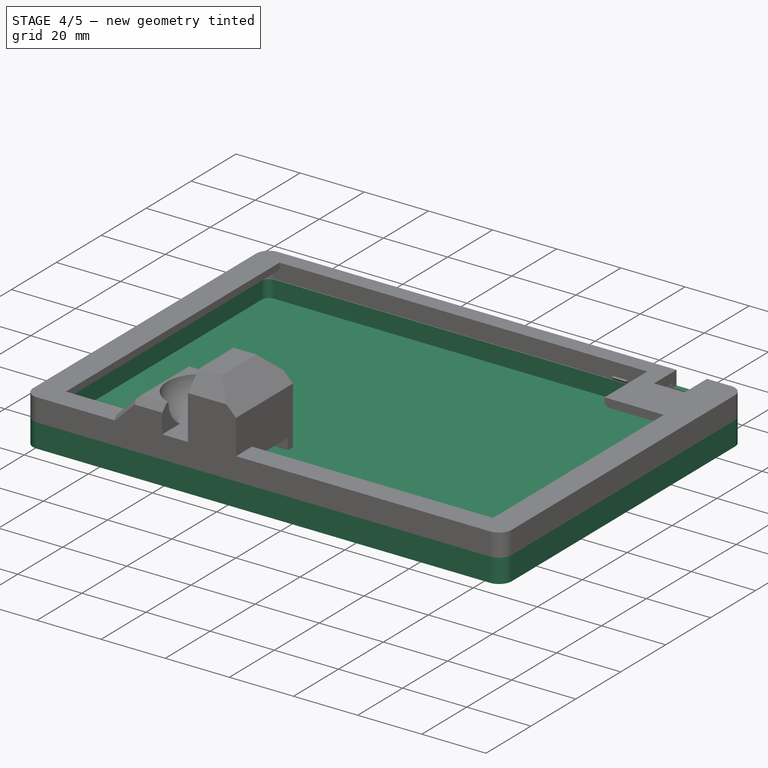
[diagram: stage 4 of 5 — iso view after this stage's code; geometry added in this stage tinted green]
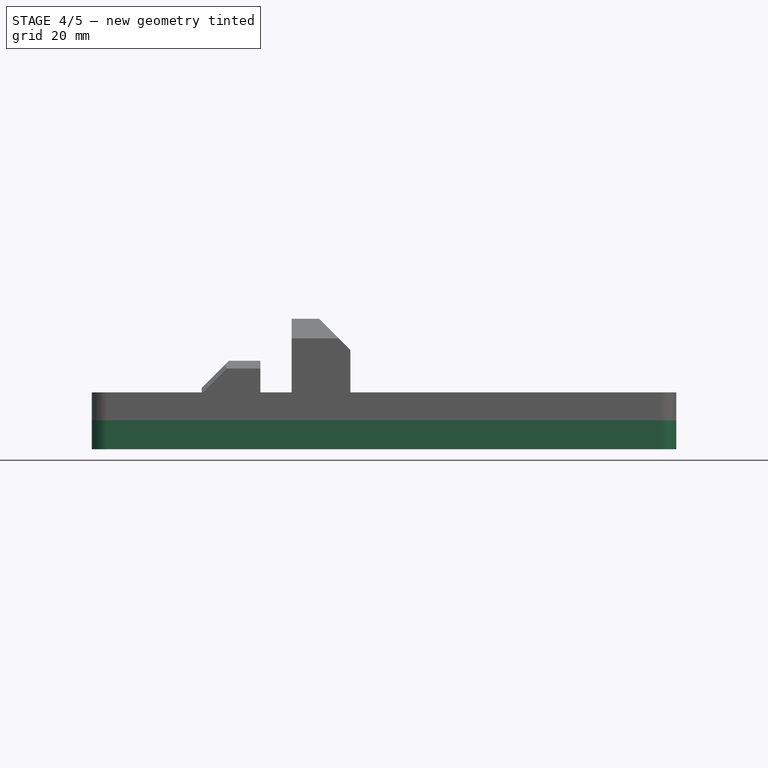
[diagram: stage 4 of 5 — front view after this stage's code; geometry added in this stage tinted green]
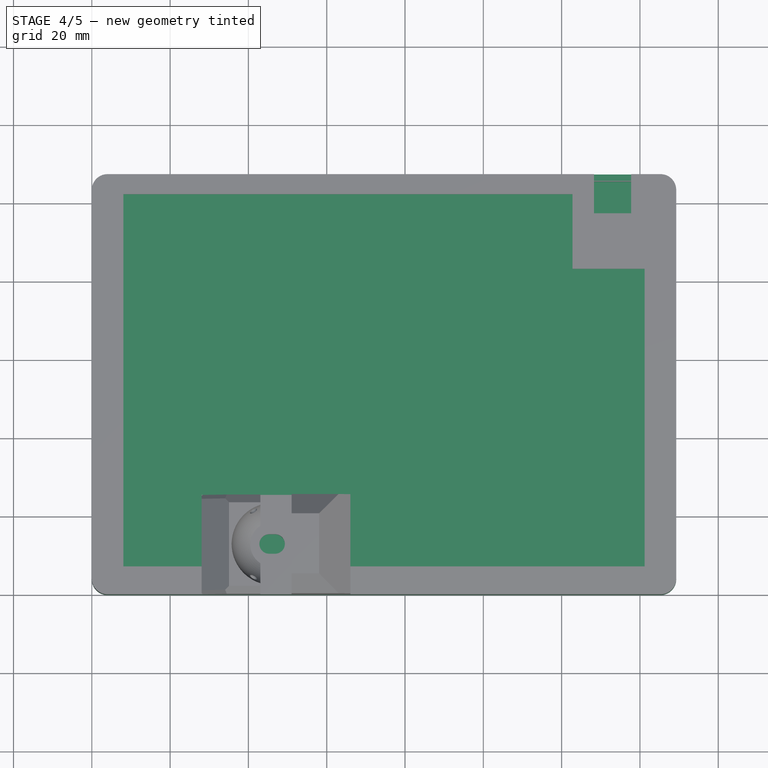
[diagram: stage 4 of 5 — top view after this stage's code; geometry added in this stage tinted green]
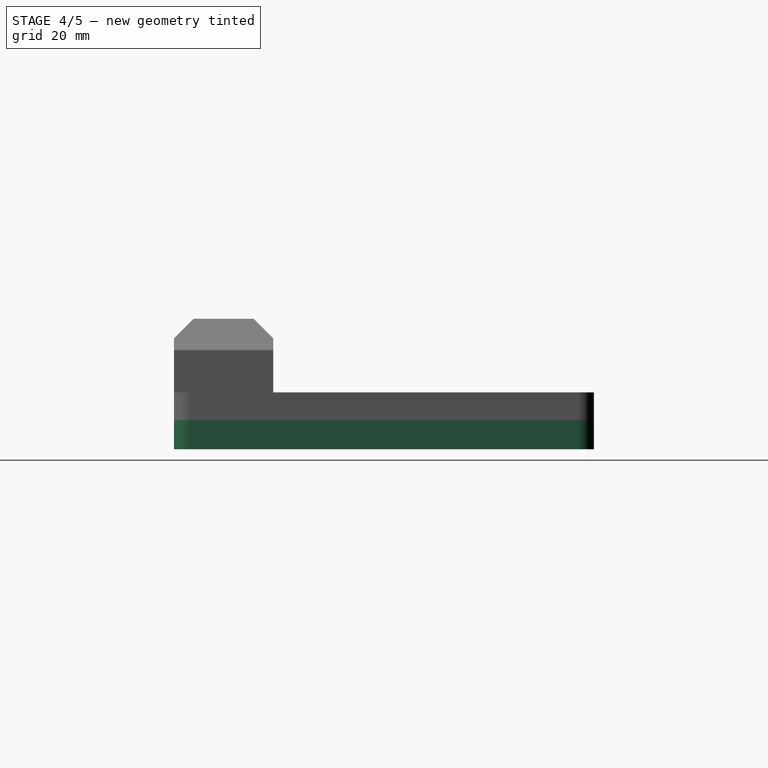
[diagram: stage 4 of 5 — right view after this stage's code; geometry added in this stage tinted green]
FEATURE [Sketcher::SketchObject] Sketch
  ArcFitTolerance = 1e-06
  AttachmentSupport = -> [XY_Plane]
  FullyConstrained = true
  MakeInternals = false
  MapMode = 5
  sketch-geometry (8):
    g0: LineSegment StartX=149.26 StartY=103.29 StartZ=0 EndX=149.26 EndY=4 EndZ=0
    g1: LineSegment StartX=5.3e-15 StartY=103.29 StartZ=0 EndX=5.3e-15 EndY=4 EndZ=0
    g2: ArcOfCircle CenterX=4 CenterY=4 CenterZ=0 NormalX=0 NormalY=0 NormalZ=1 AngleXU=0 Radius=4 StartAngle=3.14159 EndAngle=4.71239
    g3: ArcOfCircle CenterX=4 CenterY=103.29 CenterZ=0 NormalX=0 NormalY=0 NormalZ=1 AngleXU=0 Radius=4 StartAngle=1.5708 EndAngle=3.14159
    g4: ArcOfCircle CenterX=145.26 CenterY=103.29 CenterZ=0 NormalX=0 NormalY=0 NormalZ=1 AngleXU=0 Radius=4 StartAngle=1.8e-15 EndAngle=1.5708
    g5: ArcOfCircle CenterX=145.26 CenterY=4 CenterZ=0 NormalX=0 NormalY=0 NormalZ=1 AngleXU=0 Radius=4 StartAngle=4.71239 EndAngle=6.28319
    g6: LineSegment StartX=4 StartY=107.29 StartZ=0 EndX=145.26 EndY=107.29 EndZ=0
    g7: LineSegment StartX=4 StartY=0 StartZ=0 EndX=145.26 EndY=-8.4e-15 EndZ=0
  constraints (23):
    c: Vertical(g0)
    c: Vertical(g1)
    c: Radius(g3) = 4
    c: Radius(g2) = 4
    c: Radius(g5) = 4
    c: Radius(g4) = 4
    c: Tangent(g3,g1) = -1.5708
    c: Tangent(g2,g1) = -1.5708
    c: Tangent(g5,g0) = 1.5708
    c: Tangent(g4,g0) = 1.5708
    c: DistanceX(g3,g4) = 141.26
    c: DistanceY(g1,g1) = 99.29
    c: DistanceX(g-1,g1) = 0
    c: Coincident(g6,g3)
    c: Horizontal(g6)
    c: DistanceX(g2,g5) = 141.26
    c: Tangent(g6,g4) = 1.5708
    c: DistanceY(g5,g4) = 107.29
    c: PointOnObject(g2,g-1)
    c: Coincident(g7,g2)
    c: Coincident(g7,g5)
    c: Angle(g2) = 1.5708
    c: Angle(g5) = 1.5708
FEATURE [PartDesign::Pad] Pad
  Direction = (0,0,1)
  Length = 2
  Length2 = 10
  Profile = -> Sketch
  ReferenceAxis = -> Sketch [N_Axis]
  Refine = true
  Suppressed = false
  Type = 0
FEATURE [Sketcher::SketchObject] Sketch001
  ArcFitTolerance = 1e-06
  AttachmentSupport = -> [Pad]
  ExternalGeometry = -> [Pad]
  FullyConstrained = false
  MakeInternals = false
  MapMode = 5
  Placement = pos=(0,0,2) rot=(0,0,1;0rad)
  sketch-geometry (16):
    g0: ArcOfCircle CenterX=4 CenterY=103.29 CenterZ=0 NormalX=0 NormalY=0 NormalZ=1 AngleXU=0 Radius=4 StartAngle=1.5708 EndAngle=3.14159
    g1: ArcOfCircle CenterX=4 CenterY=4 CenterZ=0 NormalX=0 NormalY=0 NormalZ=1 AngleXU=0 Radius=4 StartAngle=3.14159 EndAngle=4.71239
    g2: ArcOfCircle CenterX=145.26 CenterY=4 CenterZ=0 NormalX=0 NormalY=0 NormalZ=1 AngleXU=0 Radius=4 StartAngle=4.71239 EndAngle=6.28319
    g3: ArcOfCircle CenterX=145.26 CenterY=103.29 CenterZ=0 NormalX=0 NormalY=0 NormalZ=1 AngleXU=0 Radius=4 StartAngle=4e-16 EndAngle=1.5708
    g4: LineSegment StartX=4 StartY=107.29 StartZ=0 EndX=145.26 EndY=107.29 EndZ=0
    g5: LineSegment StartX=149.26 StartY=103.29 StartZ=0 EndX=149.26 EndY=4 EndZ=0
    g6: LineSegment StartX=145.26 StartY=-8.9e-15 StartZ=0 EndX=4 EndY=0 EndZ=0
    g7: LineSegment StartX=2.9e-15 StartY=4 StartZ=0 EndX=2.9e-15 EndY=103.29 EndZ=0
    g8: LineSegment StartX=4 StartY=105.49 StartZ=0 EndX=145.26 EndY=105.49 EndZ=0
    g9: LineSegment StartX=147.46 StartY=103.29 StartZ=0 EndX=147.46 EndY=4 EndZ=0
    g10: LineSegment StartX=145.26 StartY=1.8 StartZ=0 EndX=4 EndY=1.8 EndZ=0
    g11: LineSegment StartX=1.8 StartY=4 StartZ=0 EndX=1.8 EndY=103.29 EndZ=0
    g12: ArcOfCircle CenterX=4 CenterY=103.29 CenterZ=0 NormalX=0 NormalY=0 NormalZ=1 AngleXU=0 Radius=2.2 StartAngle=1.5708 EndAngle=3.14159
    g13: ArcOfCircle CenterX=4 CenterY=4 CenterZ=0 NormalX=0 NormalY=0 NormalZ=1 AngleXU=0 Radius=2.2 StartAngle=3.14159 EndAngle=4.71239
    g14: ArcOfCircle CenterX=145.26 CenterY=4 CenterZ=0 NormalX=0 NormalY=0 NormalZ=1 AngleXU=0 Radius=2.2 StartAngle=4.71239 EndAngle=6.28318
    g15: ArcOfCircle CenterX=145.26 CenterY=103.29 CenterZ=0 NormalX=0 NormalY=0 NormalZ=1 AngleXU=0 Radius=2.2 StartAngle=6.28318 EndAngle=7.85398
  constraints (45):
    c: Coincident(g0,g-10)
    c: Coincident(g0,g-10)
    c: Coincident(g1,g-7)
    c: Coincident(g1,g-7)
    c: Coincident(g2,g-8)
    c: Coincident(g2,g-8)
    c: Coincident(g3,g-9)
    c: Coincident(g3,g-9)
    c: Angle(g3) = 1.5708
    c: Angle(g2) = 1.5708
    c: Angle(g1) = 1.5708
    c: Angle(g0) = 1.5708
    c: DistanceX(g4,g4) = 141.26
    c: Tangent(g4,g0,g4) = 1.5708
    c: Tangent(g4,g3)
    c: Tangent(g5,g3) = 1.5708
    c: Tangent(g6,g2) = 1.5708
    c: Tangent(g6,g1) = 1.5708
    c: Tangent(g7,g1) = 1.5708
    c: Horizontal(g4)
    c: Tangent(g5,g2) = 1.5708
    c: Tangent(g7,g0) = 1.5708
    c: Horizontal(g8)
    c: Vertical(g9)
    c: Horizontal(g10)
    c: Vertical(g11)
    c: DistanceY(g8,g4) = 1.8
    c: Equal(g8,g4)
    c: Equal(g10,g6)
    c: Equal(g9,g5)
    c: Coincident(g12,g0)
    c: Coincident(g12,g8)
    c: Coincident(g12,g11)
    c: Coincident(g13,g1)
    c: Coincident(g13,g11)
    c: Coincident(g13,g10)
    c: DistanceX(g1,g11) = 1.8
    c: Coincident(g14,g2)
    c: Coincident(g14,g10)
    c: Coincident(g14,g9)
    c: DistanceY(g2,g10) = 1.8
    c: Coincident(g15,g3)
    c: Coincident(g15,g8)
    c: Coincident(g15,g9)
    c: DistanceX(g9,g3) = 1.8
FEATURE [PartDesign::Pad] Pad001
  BaseFeature = -> Pad
  Direction = (0,0,1)
  Length = 5.4
  Length2 = 10
  Profile = -> Sketch001
  ReferenceAxis = -> Sketch001 [N_Axis]
  Refine = true
  Suppressed = false
  Type = 0
FEATURE [Sketcher::SketchObject] Sketch016
  ArcFitTolerance = 1e-06
  AttachmentOffset = pos=(0,0,-1.6) rot=(0,0,1;0rad)
  AttachmentSupport = -> [Pocket007]
  ExternalGeometry = -> [Pocket007]
  FullyConstrained = true
  MakeInternals = false
  MapMode = 5
  Placement = pos=(147.66,0,5.832e-13) rot=(0.57735,0.57735,0.57735;2.0944rad)
  sketch-geometry (8):
    g0: LineSegment StartX=9.05 StartY=7.4 StartZ=0 EndX=13.55 EndY=7.4 EndZ=0
    g1: LineSegment StartX=13.55 StartY=7.4 StartZ=0 EndX=13.55 EndY=8.4 EndZ=0
    g2: LineSegment StartX=13.55 StartY=8.4 StartZ=0 EndX=9.05 EndY=8.4 EndZ=0
    g3: LineSegment StartX=9.05 StartY=8.4 StartZ=0 EndX=9.05 EndY=7.4 EndZ=0
    g4: LineSegment StartX=93.74 StartY=7.4 StartZ=0 EndX=98.24 EndY=7.4 EndZ=0
    g5: LineSegment StartX=98.24 StartY=7.4 StartZ=0 EndX=98.24 EndY=8.4 EndZ=0
    g6: LineSegment StartX=98.24 StartY=8.4 StartZ=0 EndX=93.74 EndY=8.4 EndZ=0
    g7: LineSegment StartX=93.74 StartY=8.4 StartZ=0 EndX=93.74 EndY=7.4 EndZ=0
  constraints (24):
    c: Coincident(g0,g1)
    c: Coincident(g1,g2)
    c: Coincident(g2,g3)
    c: Coincident(g3,g0)
    c: Horizontal(g0)
    c: Horizontal(g2)
    c: Vertical(g1)
    c: Vertical(g3)
    c: Distance(g1,g3) = 4.5
    c: Distance(g0,g2) = 1
    c: PointOnObject(g0,g-4)
    c: Coincident(g4,g5)
    c: Coincident(g5,g6)
    c: Coincident(g6,g7)
    c: Coincident(g7,g4)
    c: Horizontal(g4)
    c: Horizontal(g6)
    c: Vertical(g5)
    c: Vertical(g7)
    c: Distance(g5,g7) = 4.5
    c: Distance(g4,g6) = 1
    c: PointOnObject(g4,g-4)
    c: DistanceX(g4,g-5) = 9.05
    c: DistanceX(g-3,g0) = 9.05
FEATURE [PartDesign::Pad] Pad008
  BaseFeature = -> Pocket007
  Direction = (1,0,4e-15)
  Length = 1
  Length2 = 10
  Profile = -> Sketch016
  ReferenceAxis = -> Sketch016 [N_Axis]
  Refine = true
  Reversed = true
  Suppressed = false
  Type = 0
FEATURE [PartDesign::Chamfer] Chamfer
  Angle = 45
  Base = -> Pad008 [Edge130,Edge129]
  BaseFeature = -> Pad008
  ChamferType = 0
  FlipDirection = false
  Refine = true
  Size = 0.99
  Size2 = 1
  SupportTransform = false
  Suppressed = false
  UseAllEdges = false
FEATURE [Sketcher::SketchObject] Sketch017
  ArcFitTolerance = 1e-06
  AttachmentOffset = pos=(0,0,-1.6) rot=(0,0,1;0rad)
  AttachmentSupport = -> [Chamfer]
  ExternalGeometry = -> [Chamfer]
  FullyConstrained = true
  MakeInternals = false
  MapMode = 5
  Placement = pos=(1.6,0,0) rot=(0.57735,-0.57735,-0.57735;2.0944rad)
  sketch-geometry (8):
    g0: LineSegment StartX=-98.24 StartY=8.4 StartZ=0 EndX=-98.24 EndY=7.4 EndZ=0
    g1: LineSegment StartX=-98.24 StartY=7.4 StartZ=0 EndX=-93.74 EndY=7.4 EndZ=0
    g2: LineSegment StartX=-93.74 StartY=7.4 StartZ=0 EndX=-93.74 EndY=8.4 EndZ=0
    g3: LineSegment StartX=-93.74 StartY=8.4 StartZ=0 EndX=-98.24 EndY=8.4 EndZ=0
    g4: LineSegment StartX=-13.55 StartY=7.4 StartZ=0 EndX=-9.05 EndY=7.4 EndZ=0
    g5: LineSegment StartX=-9.05 StartY=7.4 StartZ=0 EndX=-9.05 EndY=8.4 EndZ=0
    g6: LineSegment StartX=-9.05 StartY=8.4 StartZ=0 EndX=-13.55 EndY=8.4 EndZ=0
    g7: LineSegment StartX=-13.55 StartY=8.4 StartZ=0 EndX=-13.55 EndY=7.4 EndZ=0
  constraints (24):
    c: Coincident(g0,g1)
    c: Coincident(g1,g2)
    c: Coincident(g2,g3)
    c: Coincident(g3,g0)
    c: Vertical(g0)
    c: Vertical(g2)
    c: Horizontal(g1)
    c: Horizontal(g3)
    c: Distance(g0,g2) = 4.5
    c: Distance(g1,g3) = 1
    c: Coincident(g4,g5)
    c: Coincident(g5,g6)
    c: Coincident(g6,g7)
    c: Coincident(g7,g4)
    c: Horizontal(g4)
    c: Horizontal(g6)
    c: Vertical(g5)
    c: Vertical(g7)
    c: Distance(g5,g7) = 4.5
    c: Distance(g4,g6) = 1
    c: PointOnObject(g1,g-3)
    c: PointOnObject(g4,g-3)
    c: DistanceX(g-4,g0) = 9.05
    c: DistanceX(g4,g-5) = 9.05
FEATURE [PartDesign::Pad] Pad009
  BaseFeature = -> Chamfer
  Direction = (-1,0,0)
  Length = 1
  Length2 = 10
  Profile = -> Sketch017
  ReferenceAxis = -> Sketch017 [N_Axis]
  Refine = true
  Reversed = true
  Suppressed = false
  Type = 0
FEATURE [PartDesign::Chamfer] Chamfer001
  Angle = 45
  Base = -> Pad009 [Edge159,Edge160]
  BaseFeature = -> Pad009
  ChamferType = 0
  FlipDirection = false
  Refine = true
  Size = 0.99
  Size2 = 1
  SupportTransform = false
  Suppressed = false
  UseAllEdges = false
FEATURE [Sketcher::SketchObject] Sketch018
  ArcFitTolerance = 1e-06
  AttachmentSupport = -> [Chamfer001]
  ExternalGeometry = -> [Chamfer001]
  FullyConstrained = true
  MakeInternals = false
  MapMode = 5
  Placement = pos=(0,0,14.5) rot=(0,0,1;0rad)
  sketch-geometry (4):
    g0: LineSegment StartX=128.26 StartY=107.29 StartZ=0 EndX=128.26 EndY=97.29 EndZ=0
    g1: LineSegment StartX=128.26 StartY=97.29 StartZ=0 EndX=137.76 EndY=97.29 EndZ=0
    g2: LineSegment StartX=137.76 StartY=97.29 StartZ=0 EndX=137.76 EndY=107.29 EndZ=0
    g3: LineSegment StartX=137.76 StartY=107.29 StartZ=0 EndX=128.26 EndY=107.29 EndZ=0
  constraints (12):
    c: Coincident(g0,g1)
    c: Coincident(g1,g2)
    c: Coincident(g2,g3)
    c: Coincident(g3,g0)
    c: Vertical(g0)
    c: Vertical(g2)
    c: Horizontal(g1)
    c: Horizontal(g3)
    c: Distance(g0,g2) = 9.5
    c: Distance(g1,g3) = 10
    c: PointOnObject(g0,g-3)
    c: DistanceX(g2,g-4) = 11.5
FEATURE [PartDesign::Pocket] Pocket008
  BaseFeature = -> Chamfer001
  Direction = (0,0,-1)
  Length = 4.4
  Length2 = 5
  Profile = -> Sketch018
  ReferenceAxis = -> Sketch018 [N_Axis]
  Refine = true
  Suppressed = false
  Type = 0
FEATURE [PartDesign::Body] Body  label="BottomCase"
  AllowCompound = false
  Group = -> [Sketch,Pad,Sketch001,Pad001,Sketch002,Pad002,Sketch003,Pad003,Sketch006,Pad005,Sketch007,Pocket001,Sketch008,Pocket002,Sketch009,Pocket003,Sketch020,Pocket009,Sketch021,Pad010]
  Origin = -> Origin
  Tip = -> Pad010
FEATURE [Measure::MeasureLength] Length001  label="Length001: 3.00 mm"
  Elements = -> [Body]
  Length = 3
FEATURE [Measure::MeasureLength] Length002  label="Length002: 19.50 mm"
  Elements = -> [Body]
  Length = 19.5
FEATURE [Sketcher::SketchObject] Sketch022
  ArcFitTolerance = 1e-06
  AttachmentOffset = pos=(0,0,-1.6) rot=(0,0,1;0rad)
  AttachmentSupport = -> [Pocket008]
  ExternalGeometry = -> [Pocket008]
  FullyConstrained = true
  MakeInternals = false
  MapMode = 5
  Placement = pos=(0,105.69,4e-16) rot=(0,0.707107,0.707107;3.14159rad)
  sketch-geometry (4):
    g0: LineSegment StartX=-114.21 StartY=7.4 StartZ=0 EndX=-109.71 EndY=7.4 EndZ=0
    g1: LineSegment StartX=-109.71 StartY=7.4 StartZ=0 EndX=-109.71 EndY=8.4 EndZ=0
    g2: LineSegment StartX=-109.71 StartY=8.4 StartZ=0 EndX=-114.21 EndY=8.4 EndZ=0
    g3: LineSegment StartX=-114.21 StartY=8.4 StartZ=0 EndX=-114.21 EndY=7.4 EndZ=0
  constraints (12):
    c: Coincident(g0,g1)
    c: Coincident(g1,g2)
    c: Coincident(g2,g3)
    c: Coincident(g3,g0)
    c: Horizontal(g0)
    c: Horizontal(g2)
    c: Vertical(g1)
    c: Vertical(g3)
    c: Distance(g1,g3) = 4.5
    c: Distance(g0,g2) = 1
    c: PointOnObject(g0,g-3)
    c: DistanceX(g-4,g0) = 35.05
FEATURE [PartDesign::Pad] Pad011
  BaseFeature = -> Pocket008
  Direction = (0,1,-2e-16)
  Length = 1
  Length2 = 10
  Profile = -> Sketch022
  ReferenceAxis = -> Sketch022 [N_Axis]
  Refine = true
  Reversed = true
  Suppressed = false
  Type = 0
FEATURE [PartDesign::Chamfer] Chamfer002
  Angle = 45
  Base = -> Pad011 [Edge171]
  BaseFeature = -> Pad011
  ChamferType = 0
  FlipDirection = false
  Refine = true
  Size = 0.99
  Size2 = 1
  SupportTransform = false
  Suppressed = false
  UseAllEdges = false
FEATURE [Sketcher::SketchObject] Sketch023
  ArcFitTolerance = 1e-06
  AttachmentSupport = -> [Chamfer002]
  ExternalGeometry = -> [Chamfer002]
  FullyConstrained = true
  MakeInternals = false
  MapMode = 5
  Placement = pos=(0,0,12.5) rot=(1,0,0;3.14159rad)
  sketch-geometry (4):
    g0: LineSegment StartX=28.05 StartY=-25.35 StartZ=0 EndX=38.05 EndY=-25.35 EndZ=0
    g1: LineSegment StartX=38.05 StartY=-25.35 StartZ=0 EndX=38.05 EndY=-1.6 EndZ=0
    g2: LineSegment StartX=38.05 StartY=-1.6 StartZ=0 EndX=28.05 EndY=-1.6 EndZ=0
    g3: LineSegment StartX=28.05 StartY=-1.6 StartZ=0 EndX=28.05 EndY=-25.35 EndZ=0
  constraints (10):
    c: Coincident(g0,g1)
    c: Coincident(g1,g2)
    c: Coincident(g2,g3)
    c: Coincident(g3,g0)
    c: Horizontal(g0)
    c: Horizontal(g2)
    c: Vertical(g1)
    c: Vertical(g3)
    c: Coincident(g0,g-4)
    c: Coincident(g1,g-5)
FEATURE [PartDesign::Pad] Pad012
  BaseFeature = -> Chamfer002
  Direction = (0,0,-1)
  Length = 5.1
  Length2 = 10
  Profile = -> Sketch023
  ReferenceAxis = -> Sketch023 [N_Axis]
  Refine = true
  Suppressed = false
  Type = 0
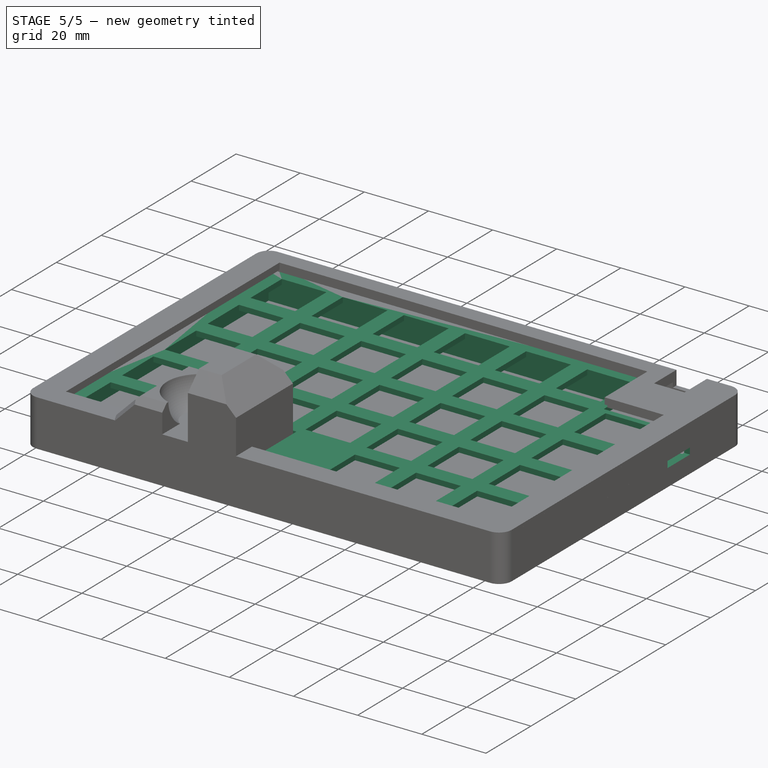
[diagram: stage 5 of 5 — iso view after this stage's code; geometry added in this stage tinted green]
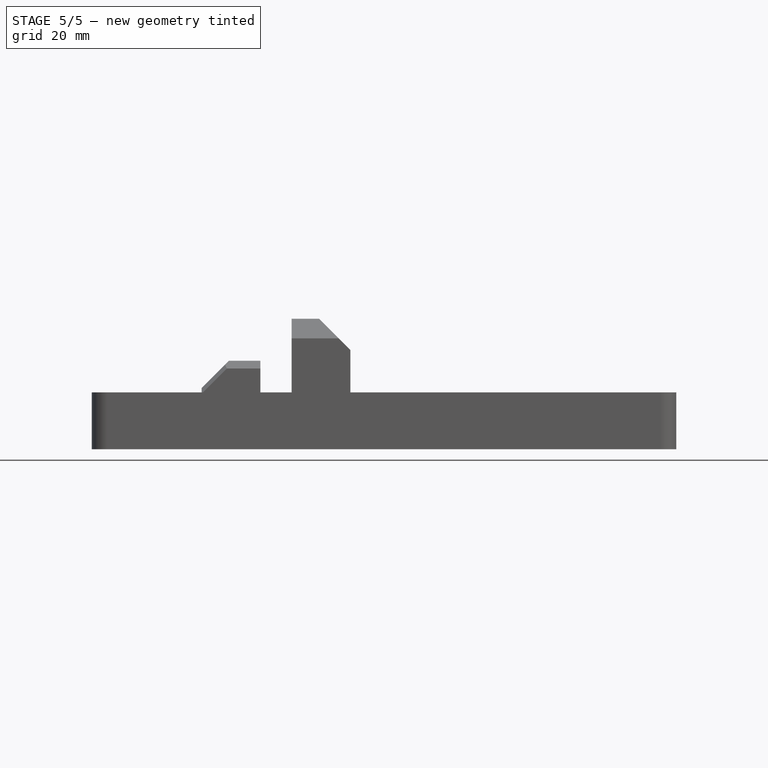
[diagram: stage 5 of 5 — front view after this stage's code; geometry added in this stage tinted green]
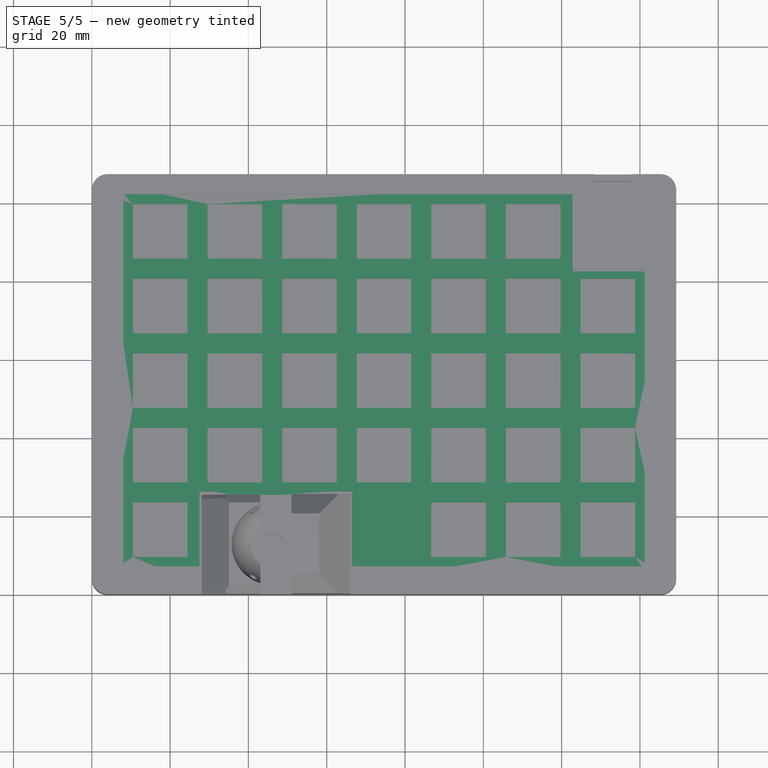
[diagram: stage 5 of 5 — top view after this stage's code; geometry added in this stage tinted green]
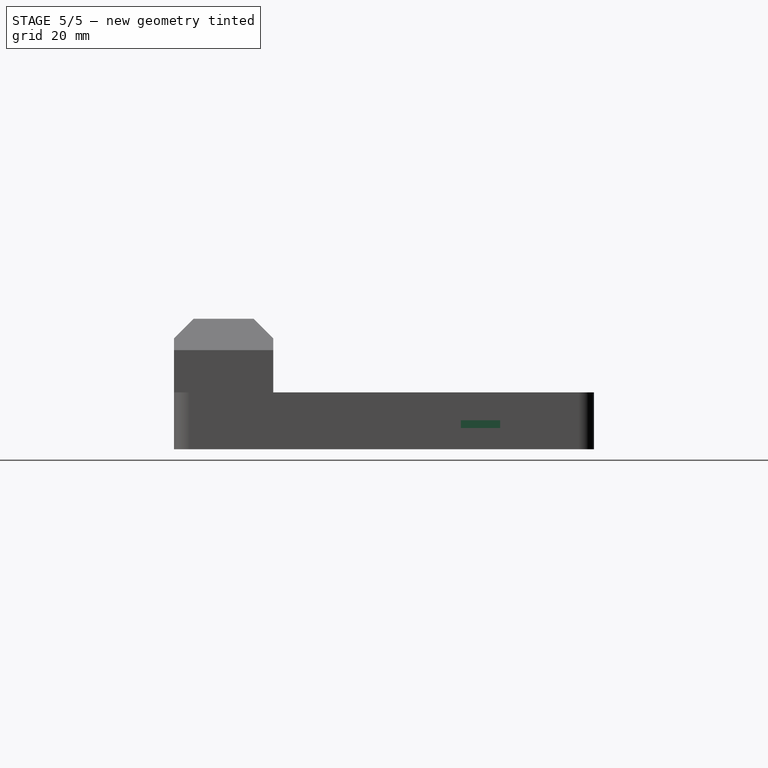
[diagram: stage 5 of 5 — right view after this stage's code; geometry added in this stage tinted green]
FEATURE [Sketcher::SketchObject] Sketch002
  ArcFitTolerance = 1e-06
  AttachmentSupport = -> [Pad001]
  ExternalGeometry = -> [Pad001]
  FullyConstrained = true
  MakeInternals = false
  MapMode = 5
  Placement = pos=(0,0,2) rot=(0,0,1;0rad)
  sketch-geometry (12):
    g0: LineSegment StartX=40 StartY=26.8 StartZ=0 EndX=40 EndY=23.05 EndZ=0
    g1: LineSegment StartX=40 StartY=23.05 StartZ=0 EndX=66 EndY=23.05 EndZ=0
    g2: LineSegment StartX=66 StartY=23.05 StartZ=0 EndX=66 EndY=26.8 EndZ=0
    g3: LineSegment StartX=66 StartY=26.8 StartZ=0 EndX=40 EndY=26.8 EndZ=0
    g4: LineSegment StartX=40 StartY=3.55 StartZ=0 EndX=40 EndY=1.8 EndZ=0
    g5: LineSegment StartX=40 StartY=1.8 StartZ=0 EndX=66 EndY=1.8 EndZ=0
    g6: LineSegment StartX=66 StartY=1.8 StartZ=0 EndX=66 EndY=3.55 EndZ=0
    g7: LineSegment StartX=66 StartY=3.55 StartZ=0 EndX=40 EndY=3.55 EndZ=0
    g8: LineSegment StartX=40 StartY=26.8 StartZ=0 EndX=28 EndY=26.8 EndZ=0
    g9: LineSegment StartX=28 StartY=26.8 StartZ=0 EndX=28 EndY=1.8 EndZ=0
    g10: LineSegment StartX=28 StartY=1.8 StartZ=0 EndX=40 EndY=1.8 EndZ=0
    g11: LineSegment StartX=40 StartY=1.8 StartZ=0 EndX=40 EndY=26.8 EndZ=0
  constraints (35):
    c: Coincident(g0,g1)
    c: Coincident(g1,g2)
    c: Coincident(g2,g3)
    c: Coincident(g3,g0)
    c: Vertical(g0)
    c: Vertical(g2)
    c: Horizontal(g1)
    c: Horizontal(g3)
    c: Distance(g0,g2) = 26
    c: Distance(g1,g3) = 3.75
    c: DistanceX(g-3,g0) = 40
    c: Coincident(g4,g5)
    c: Coincident(g5,g6)
    c: Coincident(g6,g7)
    c: Coincident(g7,g4)
    c: Vertical(g4)
    c: Vertical(g6)
    c: Horizontal(g5)
    c: Horizontal(g7)
    c: Distance(g4,g6) = 26
    c: Distance(g5,g7) = 1.75
    c: PointOnObject(g4,g-4)
    c: DistanceY(g4,g0) = 19.5
    c: DistanceX(g-3,g4) = 40
    c: Coincident(g8,g9)
    c: Coincident(g9,g10)
    c: Coincident(g10,g11)
    c: Coincident(g11,g8)
    c: Horizontal(g8)
    c: Horizontal(g10)
    c: Vertical(g9)
    c: Vertical(g11)
    c: Distance(g9,g11) = 12
    c: Coincident(g8,g0)
    c: PointOnObject(g9,g-4)
FEATURE [PartDesign::Pad] Pad002
  BaseFeature = -> Pad001
  Direction = (0,0,1)
  Length = 3
  Length2 = 10
  Profile = -> Sketch002
  ReferenceAxis = -> Sketch002 [N_Axis]
  Refine = true
  Suppressed = false
  Type = 0
FEATURE [Sketcher::SketchObject] Sketch003
  ArcFitTolerance = 1e-06
  AttachmentSupport = -> [Pad002]
  ExternalGeometry = -> [Pad002]
  FullyConstrained = true
  MakeInternals = false
  MapMode = 5
  Placement = pos=(0,0,5) rot=(0,0,1;0rad)
  sketch-geometry (6):
    g0: LineSegment StartX=28 StartY=1.8 StartZ=0 EndX=28 EndY=26.8 EndZ=0
    g1: LineSegment StartX=28 StartY=26.8 StartZ=0 EndX=66 EndY=26.8 EndZ=0
    g2: LineSegment StartX=66 StartY=26.8 StartZ=0 EndX=66 EndY=24.8 EndZ=0
    g3: LineSegment StartX=66 StartY=24.8 StartZ=0 EndX=40 EndY=24.8 EndZ=0
    g4: LineSegment StartX=40 StartY=24.8 StartZ=0 EndX=40 EndY=1.8 EndZ=0
    g5: LineSegment StartX=40 StartY=1.8 StartZ=0 EndX=28 EndY=1.8 EndZ=0
  constraints (15):
    c: Coincident(g-4,g0)
    c: Coincident(g0,g-4)
    c: Coincident(g0,g1)
    c: Coincident(g1,g-5)
    c: Coincident(g1,g2)
    c: PointOnObject(g2,g-5)
    c: Coincident(g2,g3)
    c: Horizontal(g3)
    c: Coincident(g3,g4)
    c: PointOnObject(g4,g-8)
    c: Vertical(g4)
    c: Coincident(g4,g5)
    c: Coincident(g5,g0)
    c: DistanceY(g2,g1) = 2
    c: DistanceX(g3,g2) = 26
FEATURE [PartDesign::Pad] Pad003
  BaseFeature = -> Pad002
  Direction = (0,0,1)
  Length = 2.4
  Length2 = 10
  Profile = -> Sketch003
  ReferenceAxis = -> Sketch003 [N_Axis]
  Refine = true
  Suppressed = false
  Type = 0
FEATURE [Sketcher::SketchObject] Sketch005
  ArcFitTolerance = 1e-06
  AttachmentOffset = pos=(0,0,9.9) rot=(0,0,1;0rad)
  AttachmentSupport = -> [XY_Plane001]
  FullyConstrained = true
  MakeInternals = false
  MapMode = 5
  Placement = pos=(0,0,9.9) rot=(0,0,1;0rad)
  sketch-geometry (16):
    g0: LineSegment StartX=5.55 StartY=104.99 StartZ=0 EndX=122.96 EndY=104.99 EndZ=0
    g1: LineSegment StartX=143.71 StartY=2.3 StartZ=0 EndX=66.5 EndY=2.3 EndZ=0
    g2: LineSegment StartX=66.5 StartY=2.3 StartZ=0 EndX=66.5 EndY=26.3 EndZ=0
    g3: LineSegment StartX=66.5 StartY=26.3 StartZ=0 EndX=27.5 EndY=26.3 EndZ=0
    g4: LineSegment StartX=27.5 StartY=26.3 StartZ=0 EndX=27.5 EndY=2.3 EndZ=0
    g5: LineSegment StartX=27.5 StartY=2.3 StartZ=0 EndX=5.55 EndY=2.3 EndZ=0
    g6: LineSegment StartX=146.96 StartY=82.49 StartZ=0 EndX=146.96 EndY=4.55 EndZ=0
    g7: LineSegment StartX=2.3 StartY=102.74 StartZ=0 EndX=2.3 EndY=4.3 EndZ=0
    g8: LineSegment StartX=5.55 StartY=104.99 StartZ=0 EndX=5.55 EndY=102.74 EndZ=0
    g9: LineSegment StartX=2.3 StartY=102.74 StartZ=0 EndX=5.55 EndY=102.74 EndZ=0
    g10: LineSegment StartX=146.96 StartY=4.55 StartZ=0 EndX=143.71 EndY=4.55 EndZ=0
    g11: LineSegment StartX=143.71 StartY=4.55 StartZ=0 EndX=143.71 EndY=2.3 EndZ=0
    g12: LineSegment StartX=2.3 StartY=4.3 StartZ=0 EndX=5.55 EndY=4.3 EndZ=0
    g13: LineSegment StartX=5.55 StartY=4.3 StartZ=0 EndX=5.55 EndY=2.3 EndZ=0
    g14: LineSegment StartX=122.96 StartY=104.99 StartZ=0 EndX=122.96 EndY=82.49 EndZ=0
    g15: LineSegment StartX=122.96 StartY=82.49 StartZ=0 EndX=146.96 EndY=82.49 EndZ=0
  constraints (48):
    c: Horizontal(g0)
    c: Horizontal(g1)
    c: Coincident(g1,g2)
    c: Vertical(g2)
    c: Coincident(g2,g3)
    c: Horizontal(g3)
    c: Coincident(g3,g4)
    c: Vertical(g4)
    c: Coincident(g4,g5)
    c: Horizontal(g5)
    c: Vertical(g6)
    c: Vertical(g7)
    c: DistanceY(g5,g0) = 102.69
    c: DistanceY(g1,g0) = 102.69
    c: DistanceY(g-1,g5) = 2.3
    c: DistanceY(g4,g3) = 24
    c: DistanceX(g3,g2) = 39
    c: DistanceX(g7,g0) = 3.25
    c: DistanceY(g7,g0) = 2.25
    c: Coincident(g8,g0)
    c: Vertical(g8)
    c: DistanceY(g8,g0) = 2.25
    c: Coincident(g9,g7)
    c: Coincident(g9,g8)
    c: DistanceX(g7,g6) = 144.66
    c: DistanceX(g0,g6) = 24
    c: DistanceX(g1,g6) = 3.25
    c: DistanceY(g1,g6) = 2.25
    c: Coincident(g6,g10)
    c: Horizontal(g10)
    c: Coincident(g10,g11)
    c: Coincident(g11,g1)
    c: Vertical(g11)
    c: DistanceX(g7,g5) = 3.25
    c: Coincident(g7,g12)
    c: Horizontal(g12)
    c: Coincident(g12,g13)
    c: Coincident(g13,g5)
    c: Vertical(g13)
    c: DistanceX(g-1,g7) = 2.3
    c: DistanceX(g7,g4) = 25.2
    c: DistanceY(g5,g12) = 2
    c: DistanceY(g6,g0) = 22.5
    c: Coincident(g0,g14)
    c: Vertical(g14)
    c: Coincident(g14,g15)
    c: Coincident(g15,g6)
    c: Horizontal(g15)
FEATURE [Sketcher::SketchObject] Sketch004
  ArcFitTolerance = 1e-06
  ExternalGeometry = -> [Sketch005]
  FullyConstrained = true
  MakeInternals = false
  Placement = pos=(0,0,11.5) rot=(0,0,1;3.14159rad)
  sketch-geometry (124):
    g0: LineSegment StartX=-24.455 StartY=-23.5 StartZ=0 EndX=-10.505 EndY=-23.5 EndZ=0
    g1: LineSegment StartX=-86.705 StartY=-9.55 StartZ=0 EndX=-100.655 EndY=-9.55 EndZ=0
    g2: LineSegment StartX=-100.655 StartY=-23.5 StartZ=0 EndX=-86.705 EndY=-23.5 EndZ=0
    g3: LineSegment StartX=-119.705 StartY=-9.55 StartZ=0 EndX=-119.705 EndY=-23.5 EndZ=0
    g4: LineSegment StartX=-124.805 StartY=-9.55 StartZ=0 EndX=-138.755 EndY=-9.55 EndZ=0
    g5: LineSegment StartX=-138.755 StartY=-23.5 StartZ=0 EndX=-124.805 EndY=-23.5 EndZ=0
    g6: LineSegment StartX=-10.505 StartY=-42.55 StartZ=0 EndX=-10.505 EndY=-28.6 EndZ=0
    g7: LineSegment StartX=-24.455 StartY=-28.6 StartZ=0 EndX=-24.455 EndY=-42.55 EndZ=0
    g8: LineSegment StartX=-29.555 StartY=-42.55 StartZ=0 EndX=-29.555 EndY=-28.6 EndZ=0
    g9: LineSegment StartX=-43.505 StartY=-28.6 StartZ=0 EndX=-43.505 EndY=-42.55 EndZ=0
    g10: LineSegment StartX=-48.605 StartY=-42.55 StartZ=0 EndX=-48.605 EndY=-28.6 EndZ=0
    g11: LineSegment StartX=-62.555 StartY=-28.6 StartZ=0 EndX=-62.555 EndY=-42.55 EndZ=0
    g12: LineSegment StartX=-67.655 StartY=-42.55 StartZ=0 EndX=-67.655 EndY=-28.6 EndZ=0
    g13: LineSegment StartX=-81.605 StartY=-28.6 StartZ=0 EndX=-81.605 EndY=-42.55 EndZ=0
    g14: LineSegment StartX=-86.705 StartY=-42.55 StartZ=0 EndX=-86.705 EndY=-28.6 EndZ=0
    g15: LineSegment StartX=-100.655 StartY=-28.6 StartZ=0 EndX=-100.655 EndY=-42.55 EndZ=0
    g16: LineSegment StartX=-119.705 StartY=-28.6 StartZ=0 EndX=-119.705 EndY=-42.55 EndZ=0
    g17: LineSegment StartX=-138.755 StartY=-28.6 StartZ=0 EndX=-138.755 EndY=-42.55 EndZ=0
    g18: LineSegment StartX=-10.505 StartY=-61.6 StartZ=0 EndX=-10.505 EndY=-47.65 EndZ=0
    g19: LineSegment StartX=-24.455 StartY=-47.65 StartZ=0 EndX=-24.455 EndY=-61.6 EndZ=0
    g20: LineSegment StartX=-29.555 StartY=-61.6 StartZ=0 EndX=-29.555 EndY=-47.65 EndZ=0
    g21: LineSegment StartX=-43.505 StartY=-47.65 StartZ=0 EndX=-43.505 EndY=-61.6 EndZ=0
    g22: LineSegment StartX=-48.605 StartY=-61.6 StartZ=0 EndX=-48.605 EndY=-47.65 EndZ=0
    g23: LineSegment StartX=-62.555 StartY=-47.65 StartZ=0 EndX=-62.555 EndY=-61.6 EndZ=0
    g24: LineSegment StartX=-67.655 StartY=-61.6 StartZ=0 EndX=-67.655 EndY=-47.65 EndZ=0
    g25: LineSegment StartX=-81.605 StartY=-47.65 StartZ=0 EndX=-81.605 EndY=-61.6 EndZ=0
    g26: LineSegment StartX=-86.705 StartY=-47.65 StartZ=0 EndX=-100.655 EndY=-47.65 EndZ=0
    g27: LineSegment StartX=-119.705 StartY=-47.65 StartZ=0 EndX=-119.705 EndY=-61.6 EndZ=0
    g28: LineSegment StartX=-138.755 StartY=-61.6 StartZ=0 EndX=-124.805 EndY=-61.6 EndZ=0
    g29: LineSegment StartX=-10.505 StartY=-80.65 StartZ=0 EndX=-10.505 EndY=-66.7 EndZ=0
    g30: LineSegment StartX=-24.455 StartY=-66.7 StartZ=0 EndX=-24.455 EndY=-80.65 EndZ=0
    g31: LineSegment StartX=-29.555 StartY=-80.65 StartZ=0 EndX=-29.555 EndY=-66.7 EndZ=0
    g32: LineSegment StartX=-48.605 StartY=-80.65 StartZ=0 EndX=-48.605 EndY=-66.7 EndZ=0
    g33: LineSegment StartX=-62.555 StartY=-66.7 StartZ=0 EndX=-62.555 EndY=-80.65 EndZ=0
    g34: LineSegment StartX=-81.605 StartY=-66.7 StartZ=0 EndX=-81.605 EndY=-80.65 EndZ=0
    g35: LineSegment StartX=-86.705 StartY=-80.65 StartZ=0 EndX=-86.705 EndY=-66.7 EndZ=0
    g36: LineSegment StartX=-105.755 StartY=-66.7 StartZ=0 EndX=-119.705 EndY=-66.7 EndZ=0
    g37: LineSegment StartX=-138.755 StartY=-66.7 StartZ=0 EndX=-138.755 EndY=-80.65 EndZ=0
    g38: LineSegment StartX=-10.505 StartY=-99.7 StartZ=0 EndX=-10.505 EndY=-85.75 EndZ=0
    g39: LineSegment StartX=-29.555 StartY=-99.7 StartZ=0 EndX=-29.555 EndY=-85.75 EndZ=0
    g40: LineSegment StartX=-48.605 StartY=-99.7 StartZ=0 EndX=-48.605 EndY=-85.75 EndZ=0
    g41: LineSegment StartX=-67.655 StartY=-85.75 StartZ=0 EndX=-81.605 EndY=-85.75 EndZ=0
    g42: LineSegment StartX=-86.705 StartY=-99.7 StartZ=0 EndX=-86.705 EndY=-85.75 EndZ=0
    g43: LineSegment StartX=-100.655 StartY=-85.75 StartZ=0 EndX=-100.655 EndY=-99.7 EndZ=0
    g44: LineSegment StartX=-105.755 StartY=-85.75 StartZ=0 EndX=-119.705 EndY=-85.75 EndZ=0
    g45: LineSegment StartX=-119.705 StartY=-99.7 StartZ=0 EndX=-105.755 EndY=-99.7 EndZ=0
    g46: LineSegment StartX=-24.455 StartY=-9.55 StartZ=0 EndX=-10.505 EndY=-9.55 EndZ=0
    g47: LineSegment StartX=-10.505 StartY=-9.55 StartZ=0 EndX=-10.505 EndY=-23.5 EndZ=0
    g48: LineSegment StartX=-24.455 StartY=-9.55 StartZ=0 EndX=-24.455 EndY=-23.5 EndZ=0
    g49: LineSegment StartX=-62.555 StartY=-28.6 StartZ=0 EndX=-48.605 EndY=-28.6 EndZ=0
    g50: LineSegment StartX=-81.605 StartY=-28.6 StartZ=0 EndX=-67.655 EndY=-28.6 EndZ=0
    g51: LineSegment StartX=-100.655 StartY=-28.6 StartZ=0 EndX=-86.705 EndY=-28.6 EndZ=0
    g52: LineSegment StartX=-119.705 StartY=-28.6 StartZ=0 EndX=-105.755 EndY=-28.6 EndZ=0
    g53: LineSegment StartX=-62.555 StartY=-42.55 StartZ=0 EndX=-48.605 EndY=-42.55 EndZ=0
    g54: LineSegment StartX=-43.505 StartY=-28.6 StartZ=0 EndX=-29.555 EndY=-28.6 EndZ=0
    g55: LineSegment StartX=-62.555 StartY=-47.65 StartZ=0 EndX=-48.605 EndY=-47.65 EndZ=0
    g56: LineSegment StartX=-43.505 StartY=-47.65 StartZ=0 EndX=-29.555 EndY=-47.65 EndZ=0
    g57: LineSegment StartX=-43.505 StartY=-80.65 StartZ=0 EndX=-29.555 EndY=-80.65 EndZ=0
    g58: LineSegment StartX=-43.505 StartY=-66.7 StartZ=0 EndX=-29.555 EndY=-66.7 EndZ=0
    g59: LineSegment StartX=-62.555 StartY=-66.7 StartZ=0 EndX=-48.605 EndY=-66.7 EndZ=0
    g60: LineSegment StartX=-43.505 StartY=-66.7 StartZ=0 EndX=-43.505 EndY=-80.65 EndZ=0
    g61: LineSegment StartX=-62.555 StartY=-80.65 StartZ=0 EndX=-48.605 EndY=-80.65 EndZ=0
    g62: LineSegment StartX=-43.505 StartY=-61.6 StartZ=0 EndX=-29.555 EndY=-61.6 EndZ=0
    g63: LineSegment StartX=-24.455 StartY=-80.65 StartZ=0 EndX=-10.505 EndY=-80.65 EndZ=0
    g64: LineSegment StartX=-24.455 StartY=-99.7 StartZ=0 EndX=-10.505 EndY=-99.7 EndZ=0
    g65: LineSegment StartX=-43.505 StartY=-99.7 StartZ=0 EndX=-29.555 EndY=-99.7 EndZ=0
    g66: LineSegment StartX=-43.505 StartY=-85.75 StartZ=0 EndX=-43.505 EndY=-99.7 EndZ=0
    g67: LineSegment StartX=-43.505 StartY=-42.55 StartZ=0 EndX=-29.555 EndY=-42.55 EndZ=0
    g68: LineSegment StartX=-24.455 StartY=-61.6 StartZ=0 EndX=-10.505 EndY=-61.6 EndZ=0
    g69: LineSegment StartX=-24.455 StartY=-42.55 StartZ=0 EndX=-10.505 EndY=-42.55 EndZ=0
    g70: LineSegment StartX=-24.455 StartY=-47.65 StartZ=0 EndX=-10.505 EndY=-47.65 EndZ=0
    g71: LineSegment StartX=-24.455 StartY=-85.75 StartZ=0 EndX=-10.505 EndY=-85.75 EndZ=0
    g72: LineSegment StartX=-24.455 StartY=-66.7 StartZ=0 EndX=-10.505 EndY=-66.7 EndZ=0
    g73: LineSegment StartX=-62.555 StartY=-61.6 StartZ=0 EndX=-48.605 EndY=-61.6 EndZ=0
    g74: LineSegment StartX=-81.605 StartY=-42.55 StartZ=0 EndX=-67.655 EndY=-42.55 EndZ=0
    g75: LineSegment StartX=-81.605 StartY=-61.6 StartZ=0 EndX=-67.655 EndY=-61.6 EndZ=0
    g76: LineSegment StartX=-81.605 StartY=-47.65 StartZ=0 EndX=-67.655 EndY=-47.65 EndZ=0
    g77: LineSegment StartX=-81.605 StartY=-80.65 StartZ=0 EndX=-67.655 EndY=-80.65 EndZ=0
    g78: LineSegment StartX=-62.555 StartY=-99.7 StartZ=0 EndX=-48.605 EndY=-99.7 EndZ=0
    g79: LineSegment StartX=-81.605 StartY=-99.7 StartZ=0 EndX=-67.655 EndY=-99.7 EndZ=0
    g80: LineSegment StartX=-100.655 StartY=-99.7 StartZ=0 EndX=-86.705 EndY=-99.7 EndZ=0
    g81: LineSegment StartX=-100.655 StartY=-85.75 StartZ=0 EndX=-86.705 EndY=-85.75 EndZ=0
    g82: LineSegment StartX=-100.655 StartY=-80.65 StartZ=0 EndX=-86.705 EndY=-80.65 EndZ=0
    g83: LineSegment StartX=-100.655 StartY=-66.7 StartZ=0 EndX=-100.655 EndY=-80.65 EndZ=0
    g84: LineSegment StartX=-24.455 StartY=-85.75 StartZ=0 EndX=-24.455 EndY=-99.7 EndZ=0
    g85: LineSegment StartX=-43.505 StartY=-85.75 StartZ=0 EndX=-29.555 EndY=-85.75 EndZ=0
    g86: LineSegment StartX=-81.605 StartY=-85.75 StartZ=0 EndX=-81.605 EndY=-99.7 EndZ=0
    g87: LineSegment StartX=-105.755 StartY=-85.75 StartZ=0 EndX=-105.755 EndY=-99.7 EndZ=0
    g88: LineSegment StartX=-119.705 StartY=-80.65 StartZ=0 EndX=-105.755 EndY=-80.65 EndZ=0
    g89: LineSegment StartX=-119.705 StartY=-85.75 StartZ=0 EndX=-119.705 EndY=-99.7 EndZ=0
    g90: LineSegment StartX=-119.705 StartY=-66.7 StartZ=0 EndX=-119.705 EndY=-80.65 EndZ=0
    g91: LineSegment StartX=-100.655 StartY=-66.7 StartZ=0 EndX=-86.705 EndY=-66.7 EndZ=0
    g92: LineSegment StartX=-119.705 StartY=-61.6 StartZ=0 EndX=-105.755 EndY=-61.6 EndZ=0
    g93: LineSegment StartX=-138.755 StartY=-80.65 StartZ=0 EndX=-124.805 EndY=-80.65 EndZ=0
    g94: LineSegment StartX=-62.555 StartY=-85.75 StartZ=0 EndX=-62.555 EndY=-99.7 EndZ=0
    g95: LineSegment StartX=-62.555 StartY=-85.75 StartZ=0 EndX=-48.605 EndY=-85.75 EndZ=0
    g96: LineSegment StartX=-86.705 StartY=-9.55 StartZ=0 EndX=-86.705 EndY=-23.5 EndZ=0
    g97: LineSegment StartX=-100.655 StartY=-9.55 StartZ=0 EndX=-100.655 EndY=-23.5 EndZ=0
    g98: LineSegment StartX=-100.655 StartY=-42.55 StartZ=0 EndX=-86.705 EndY=-42.55 EndZ=0
    g99: LineSegment StartX=-24.455 StartY=-28.6 StartZ=0 EndX=-10.505 EndY=-28.6 EndZ=0
    g100: LineSegment StartX=-100.655 StartY=-47.65 StartZ=0 EndX=-100.655 EndY=-61.6 EndZ=0
    g101: LineSegment StartX=-100.655 StartY=-61.6 StartZ=0 EndX=-86.705 EndY=-61.6 EndZ=0
    g102: LineSegment StartX=-86.705 StartY=-47.65 StartZ=0 EndX=-86.705 EndY=-61.6 EndZ=0
    g103: LineSegment StartX=-67.655 StartY=-80.65 StartZ=0 EndX=-67.655 EndY=-66.7 EndZ=0
    g104: LineSegment StartX=-81.605 StartY=-66.7 StartZ=0 EndX=-67.655 EndY=-66.7 EndZ=0
    g105: LineSegment StartX=-67.655 StartY=-85.75 StartZ=0 EndX=-67.655 EndY=-99.7 EndZ=0
    g106: LineSegment StartX=-105.755 StartY=-66.7 StartZ=0 EndX=-105.755 EndY=-80.65 EndZ=0
    g107: LineSegment StartX=-105.755 StartY=-47.65 StartZ=0 EndX=-105.755 EndY=-61.6 EndZ=0
    g108: LineSegment StartX=-119.705 StartY=-47.65 StartZ=0 EndX=-105.755 EndY=-47.65 EndZ=0
    g109: LineSegment StartX=-105.755 StartY=-28.6 StartZ=0 EndX=-105.755 EndY=-42.55 EndZ=0
    g110: LineSegment StartX=-119.705 StartY=-42.55 StartZ=0 EndX=-105.755 EndY=-42.55 EndZ=0
    g111: LineSegment StartX=-105.755 StartY=-9.55 StartZ=0 EndX=-105.755 EndY=-23.5 EndZ=0
    g112: LineSegment StartX=-119.705 StartY=-9.55 StartZ=0 EndX=-105.755 EndY=-9.55 EndZ=0
    g113: LineSegment StartX=-119.705 StartY=-23.5 StartZ=0 EndX=-105.755 EndY=-23.5 EndZ=0
    g114: LineSegment StartX=-124.805 StartY=-9.55 StartZ=0 EndX=-124.805 EndY=-23.5 EndZ=0
    g115: LineSegment StartX=-138.755 StartY=-9.55 StartZ=0 EndX=-138.755 EndY=-23.5 EndZ=0
    g116: LineSegment StartX=-124.805 StartY=-28.6 StartZ=0 EndX=-124.805 EndY=-42.55 EndZ=0
    g117: LineSegment StartX=-138.755 StartY=-28.6 StartZ=0 EndX=-124.805 EndY=-28.6 EndZ=0
    g118: LineSegment StartX=-138.755 StartY=-42.55 StartZ=0 EndX=-124.805 EndY=-42.55 EndZ=0
    g119: LineSegment StartX=-124.805 StartY=-47.65 StartZ=0 EndX=-124.805 EndY=-61.6 EndZ=0
    g120: LineSegment StartX=-138.755 StartY=-47.65 StartZ=0 EndX=-124.805 EndY=-47.65 EndZ=0
    g121: LineSegment StartX=-138.755 StartY=-47.65 StartZ=0 EndX=-138.755 EndY=-61.6 EndZ=0
    g122: LineSegment StartX=-124.805 StartY=-80.65 StartZ=0 EndX=-124.805 EndY=-66.7 EndZ=0
    g123: LineSegment StartX=-138.755 StartY=-66.7 StartZ=0 EndX=-124.805 EndY=-66.7 EndZ=0
  constraints (372):
    c: Horizontal(g0)
    c: Horizontal(g1)
    c: Horizontal(g2)
    c: Vertical(g3)
    c: Horizontal(g4)
    c: Horizontal(g5)
    c: Vertical(g6)
    c: Vertical(g7)
    c: Vertical(g8)
    c: Vertical(g9)
    c: Vertical(g10)
    c: Vertical(g11)
    c: Vertical(g12)
    c: Vertical(g13)
    c: Vertical(g14)
    c: Vertical(g15)
    c: Vertical(g16)
    c: Vertical(g17)
    c: Vertical(g18)
    c: Vertical(g19)
    c: Vertical(g20)
    c: Vertical(g21)
    c: Vertical(g22)
    c: Vertical(g23)
    c: Vertical(g24)
    c: Vertical(g25)
    c: Horizontal(g26)
    c: Vertical(g27)
    c: Horizontal(g28)
    c: Vertical(g29)
    c: Vertical(g30)
    c: Vertical(g31)
    c: Vertical(g32)
    c: Vertical(g33)
    c: Vertical(g34)
    c: Vertical(g35)
    c: Horizontal(g36)
    c: Vertical(g37)
    c: Vertical(g38)
    c: Vertical(g39)
    c: Vertical(g40)
    c: Horizontal(g41)
    c: Vertical(g42)
    c: Vertical(g43)
    c: Horizontal(g44)
    c: Horizontal(g45)
    c: DistanceY(g0,g46) = 13.95
    c: DistanceX(g46,g46) = 13.95
    c: DistanceY(g6,g6) = 13.95
    c: DistanceX(g7,g6) = 13.95
    c: DistanceY(g8,g8) = 13.95
    c: DistanceX(g9,g8) = 13.95
    c: DistanceY(g10,g10) = 13.95
    c: DistanceX(g11,g10) = 13.95
    c: DistanceY(g12,g12) = 13.95
    c: DistanceX(g13,g12) = 13.95
    c: DistanceY(g14,g14) = 13.95
    c: DistanceX(g15,g14) = 13.95
    c: DistanceY(g18,g18) = 13.95
    c: DistanceX(g19,g18) = 13.95
    c: DistanceY(g20,g20) = 13.95
    c: DistanceX(g21,g20) = 13.95
    c: DistanceY(g22,g22) = 13.95
    c: DistanceX(g23,g22) = 13.95
    c: DistanceY(g24,g24) = 13.95
    c: DistanceX(g25,g24) = 13.95
    c: DistanceX(g27,g92) = 13.95
    c: DistanceX(g37,g93) = 13.95
    c: DistanceY(g88,g36) = 13.95
    c: DistanceX(g88,g88) = 13.95
    c: DistanceX(g83,g35) = 13.95
    c: DistanceY(g82,g83) = 13.95
    c: DistanceY(g35,g35) = 13.95
    c: DistanceX(g82,g35) = 13.95
    c: DistanceX(g34,g77) = 13.95
    c: DistanceY(g32,g32) = 13.95
    c: DistanceX(g33,g32) = 13.95
    c: DistanceY(g31,g31) = 13.95
    c: DistanceX(g57,g31) = 13.95
    c: DistanceY(g29,g29) = 13.95
    c: DistanceX(g30,g29) = 13.95
    c: DistanceY(g38,g38) = 13.95
    c: DistanceX(g64,g38) = 13.95
    c: DistanceY(g39,g39) = 13.95
    c: DistanceX(g66,g39) = 13.95
    c: DistanceY(g65,g66) = 13.95
    c: DistanceX(g65,g39) = 13.95
    c: DistanceY(g40,g40) = 13.95
    c: DistanceX(g78,g40) = 13.95
    c: DistanceY(g79,g41) = 13.95
    c: DistanceX(g79,g79) = 13.95
    c: DistanceY(g42,g42) = 13.95
    c: DistanceX(g43,g42) = 13.95
    c: DistanceY(g6,g0) = 5.1
    c: DistanceY(g18,g6) = 5.1
    c: DistanceY(g29,g18) = 5.1
    c: DistanceY(g38,g29) = 5.1
    c: DistanceY(g20,g8) = 5.1
    c: DistanceY(g31,g20) = 5.1
    c: DistanceX(g20,g19) = 5.1
    c: DistanceY(g39,g31) = 5.1
    c: DistanceY(g22,g10) = 5.1
    c: DistanceY(g32,g22) = 5.1
    c: DistanceY(g40,g32) = 5.1
    c: DistanceX(g40,g66) = 5.1
    c: DistanceY(g24,g12) = 5.1
    c: DistanceX(g77,g33) = 5.1
    c: DistanceY(g35,g101) = 5.1
    c: DistanceY(g42,g35) = 5.1
    c: DistanceX(g42,g41) = 5.1
    c: DistanceX(g93,g44) = 5.1
    c: DistanceY(g66,g57) = 5.1
    c: DistanceY(g41,g34) = 5.1
    c: DistanceY(g26,g15) = 5.1
    c: DistanceY(g44,g88) = 5.1
    c: DistanceY(g36,g27) = 5.1
    c: DistanceX(g0,g6) = 0
    c: DistanceX(g6,g18) = 0
    c: DistanceX(g18,g29) = 0
    c: DistanceX(g29,g38) = 0
    c: Horizontal(g46)
    c: DistanceX(g46,g0) = 0
    c: Coincident(g47,g46)
    c: Coincident(g47,g0)
    c: Coincident(g48,g46)
    c: Coincident(g48,g0)
    c: Vertical(g48)
    c: Coincident(g49,g11)
    c: Coincident(g49,g10)
    c: Horizontal(g49)
    c: Coincident(g50,g13)
    c: Coincident(g50,g12)
    c: Horizontal(g50)
    c: Coincident(g51,g15)
    c: Coincident(g51,g14)
    c: Horizontal(g51)
    c: Coincident(g52,g16)
    c: Horizontal(g52)
    c: DistanceX(g10,g9) = 5.1
    c: Coincident(g53,g11)
    c: Coincident(g53,g10)
    c: Horizontal(g53)
    c: Coincident(g54,g9)
    c: Coincident(g54,g8)
    c: Horizontal(g54)
    c: Coincident(g55,g23)
    c: Coincident(g55,g22)
    c: Horizontal(g55)
    c: Coincident(g56,g21)
    c: Coincident(g56,g20)
    c: Horizontal(g56)
    c: Coincident(g57,g31)
    c: Horizontal(g57)
    c: Coincident(g58,g31)
    c: Horizontal(g58)
    c: DistanceY(g58,g21) = 5.1
    c: DistanceX(g32,g57) = 5.1
    c: Coincident(g59,g33)
    c: Coincident(g59,g32)
    c: Horizontal(g59)
    c: Coincident(g60,g58)
    c: Coincident(g60,g57)
    c: Vertical(g60)
    c: Coincident(g61,g33)
    c: Coincident(g61,g32)
    c: Horizontal(g61)
    c: Coincident(g62,g21)
    c: Coincident(g62,g20)
    c: Coincident(g63,g30)
    c: Coincident(g63,g29)
    c: Coincident(g64,g38)
    c: Coincident(g65,g39)
    c: Coincident(g66,g65)
    c: Coincident(g67,g9)
    c: Coincident(g67,g8)
    c: Horizontal(g67)
    c: Coincident(g68,g19)
    c: Coincident(g68,g18)
    c: Coincident(g69,g7)
    c: Coincident(g69,g6)
    c: Coincident(g70,g19)
    c: Coincident(g70,g18)
    c: Horizontal(g70)
    c: Coincident(g71,g38)
    c: Horizontal(g71)
    c: Coincident(g72,g30)
    c: Coincident(g72,g29)
    c: Horizontal(g72)
    c: DistanceX(g31,g30) = 5.1
    c: DistanceX(g22,g21) = 5.1
    c: Coincident(g73,g23)
    c: Coincident(g73,g22)
    c: Horizontal(g73)
    c: DistanceY(g11,g0) = 5.1
    c: DistanceY(g12,g0) = 5.1
    c: DistanceY(g14,g0) = 5.1
    c: DistanceY(g52,g0) = 5.1
    c: DistanceX(g12,g11) = 5.1
    c: DistanceX(g24,g23) = 5.1
    c: Coincident(g74,g13)
    c: Coincident(g74,g12)
    c: Horizontal(g74)
    c: Coincident(g75,g25)
    c: Coincident(g75,g24)
    c: Coincident(g76,g25)
    c: Coincident(g76,g24)
    c: Horizontal(g76)
    c: Coincident(g77,g34)
    c: Horizontal(g77)
    c: Coincident(g78,g40)
    c: Horizontal(g78)
    c: DistanceY(g40,g57) = 5.1
    c: Coincident(g80,g43)
    c: Coincident(g80,g42)
    c: Horizontal(g80)
    c: Coincident(g81,g43)
    c: Coincident(g81,g42)
    c: Horizontal(g81)
    c: Coincident(g82,g35)
    c: Horizontal(g82)
    c: Coincident(g83,g82)
    c: Coincident(g84,g71)
    c: Coincident(g84,g64)
    c: Vertical(g84)
    c: Horizontal(g64)
    c: Horizontal(g63)
    c: Coincident(g85,g66)
    c: Coincident(g85,g39)
    c: DistanceX(g39,g71) = 5.1
    c: Coincident(g86,g41)
    c: Coincident(g86,g79)
    c: Coincident(g87,g44)
    c: Coincident(g87,g45)
    c: Vertical(g87)
    c: DistanceY(g44,g88) = 5.1
    c: Coincident(g89,g44)
    c: Coincident(g89,g45)
    c: Vertical(g89)
    c: Coincident(g90,g36)
    c: Coincident(g90,g88)
    c: Coincident(g91,g83)
    c: Coincident(g91,g35)
    c: Coincident(g92,g27)
    c: DistanceY(g45,g44) = 13.95
    c: DistanceX(g45,g45) = 13.95
    c: Coincident(g93,g37)
    c: Horizontal(g93)
    c: DistanceX(g14,g13) = 5.1
    c: Horizontal(g68)
    c: Coincident(g94,g78)
    c: Vertical(g94)
    c: Coincident(g95,g94)
    c: Coincident(g95,g40)
    c: Horizontal(g95)
    c: Coincident(g96,g1)
    c: Coincident(g96,g2)
    c: Vertical(g96)
    c: Coincident(g97,g1)
    c: Coincident(g97,g2)
    c: Vertical(g97)
    c: Coincident(g98,g15)
    c: Coincident(g98,g14)
    c: Coincident(g99,g7)
    c: Coincident(g99,g6)
    c: Horizontal(g99)
    c: Coincident(g100,g26)
    c: Vertical(g100)
    c: Coincident(g101,g100)
    c: Horizontal(g101)
    c: Coincident(g102,g26)
    c: Coincident(g102,g101)
    c: Vertical(g102)
    c: Coincident(g103,g77)
    c: Vertical(g103)
    c: Coincident(g104,g34)
    c: Coincident(g104,g103)
    c: Horizontal(g104)
    c: Coincident(g105,g41)
    c: Coincident(g105,g79)
    c: Vertical(g105)
    c: Coincident(g106,g36)
    c: Coincident(g106,g88)
    c: Vertical(g106)
    c: Coincident(g107,g92)
    c: Vertical(g107)
    c: Coincident(g108,g27)
    c: Coincident(g108,g107)
    c: Horizontal(g108)
    c: Coincident(g109,g52)
    c: Vertical(g109)
    c: Coincident(g110,g16)
    c: Coincident(g110,g109)
    c: Horizontal(g110)
    c: Horizontal(g98)
    c: Horizontal(g75)
    c: Horizontal(g69)
    c: Vertical(g111)
    c: Coincident(g112,g3)
    c: Coincident(g112,g111)
    c: Horizontal(g112)
    c: Coincident(g113,g3)
    c: Coincident(g113,g111)
    c: Horizontal(g113)
    c: Coincident(g114,g4)
    c: Coincident(g114,g5)
    c: Vertical(g114)
    c: Coincident(g115,g4)
    c: Coincident(g115,g5)
    c: Vertical(g115)
    c: DistanceY(g5,g4) = 13.95
    c: DistanceX(g4,g4) = 13.95
    c: Vertical(g116)
    c: Coincident(g117,g17)
    c: Coincident(g117,g116)
    c: Horizontal(g117)
    c: Coincident(g118,g17)
    c: Coincident(g118,g116)
    c: Horizontal(g118)
    c: Coincident(g119,g28)
    c: Vertical(g119)
    c: Coincident(g120,g119)
    c: Horizontal(g120)
    c: Coincident(g121,g120)
    c: Coincident(g121,g28)
    c: Vertical(g121)
    c: Coincident(g122,g93)
    c: Vertical(g122)
    c: Coincident(g123,g37)
    c: Coincident(g123,g122)
    c: Horizontal(g123)
    c: DistanceX(g119,g27) = 5.1
    c: DistanceX(g107,g26) = 5.1
    c: DistanceY(g16,g16) = 13.95
    c: DistanceY(g17,g17) = 13.95
    c: DistanceX(g17,g116) = 13.95
    c: DistanceY(g119,g116) = 5.1
    c: DistanceY(g122,g28) = 5.1
    c: DistanceY(g93,g122) = 13.95
    c: DistanceY(g28,g119) = 13.95
    c: DistanceX(g28,g28) = 13.95
    c: DistanceY(g2,g1) = 13.95
    c: DistanceX(g1,g1) = 13.95
    c: DistanceX(g111,g1) = 5.1
    c: DistanceY(g111,g111) = 13.95
    c: DistanceX(g3,g111) = 13.95
    c: DistanceY(g52,g111) = 5.1
    c: DistanceY(g15,g2) = 5.1
    c: DistanceY(g101,g26) = 13.95
    c: DistanceX(g26,g26) = 13.95
    c: DistanceY(g92,g107) = 13.95
    c: DistanceY(g77,g103) = 13.95
    c: DistanceY(g79,g41) = 13.95
    c: DistanceX(g44,g43) = 5.1
    c: DistanceX(g16,g52) = 13.95
    c: DistanceX(g4,g3) = 5.1
    c: DistanceX(g8,g7) = 5.1
    c: DistanceY(g116,g5) = 5.1
    c: DistanceX(g41,g94) = 5.1
    c: DistanceY(g116,g3) = 5.1
    c: DistanceX(g116,g3) = 5.1
    c: DistanceY(g107,g15) = 5.1
    c: DistanceX(g107,g15) = 5.1
    c: DistanceX(g36,g100) = 5.1
    c: DistanceY(g44,g82) = 5.1
    c: DistanceX(g122,g27) = 5.1
    c: Vertical(g90)
    c: DistanceX(g52,g15) = 5.1
    c: DistanceX(g116,g16) = 5.1
    c: DistanceY(g34,g25) = 5.1
    c: DistanceX(g35,g34) = 5.1
    c: DistanceX(g-8,g37) = 8.205
    c: DistanceY(g4,g-9) = 7.25
FEATURE [PartDesign::Pad] Pad004
  Direction = (0,0,1)
  Length = 1.6
  Length2 = 10
  Profile = -> Sketch005
  ReferenceAxis = -> Sketch005 [N_Axis]
  Refine = true
  Suppressed = false
  Type = 0
FEATURE [Sketcher::SketchObject] Sketch006
  ArcFitTolerance = 1e-06
  AttachmentSupport = -> [Pad003]
  ExternalGeometry = -> [Pad003]
  FullyConstrained = true
  MakeInternals = false
  MapMode = 5
  Placement = pos=(0,0,2) rot=(0,0,1;0rad)
  sketch-geometry (17):
    g0: ArcOfCircle CenterX=4 CenterY=4 CenterZ=0 NormalX=0 NormalY=0 NormalZ=1 AngleXU=0 Radius=2.2 StartAngle=3.14159 EndAngle=4.71239
    g1: ArcOfCircle CenterX=145.26 CenterY=4 CenterZ=0 NormalX=0 NormalY=0 NormalZ=1 AngleXU=0 Radius=2.2 StartAngle=4.71239 EndAngle=6.28318
    g2: LineSegment StartX=145.26 StartY=1.8 StartZ=0 EndX=66 EndY=1.8 EndZ=0
    g3: LineSegment StartX=66 StartY=1.8 StartZ=0 EndX=66 EndY=3.55 EndZ=0
    g4: LineSegment StartX=145.71 StartY=63.55 StartZ=0 EndX=145.71 EndY=3.55 EndZ=0
    g5: LineSegment StartX=66 StartY=3.55 StartZ=0 EndX=145.71 EndY=3.55 EndZ=0
    g6: LineSegment StartX=4 StartY=1.8 StartZ=0 EndX=28 EndY=1.8 EndZ=0
    g7: LineSegment StartX=28 StartY=1.8 StartZ=0 EndX=28 EndY=3.55 EndZ=0
    g8: LineSegment StartX=28 StartY=3.55 StartZ=0 EndX=3.55 EndY=3.55 EndZ=0
    g9: LineSegment StartX=1.8 StartY=103.29 StartZ=0 EndX=1.8 EndY=4 EndZ=0
    g10: LineSegment StartX=3.55 StartY=3.55 StartZ=0 EndX=3.55 EndY=103.74 EndZ=0
    g11: ArcOfCircle CenterX=4 CenterY=103.29 CenterZ=0 NormalX=0 NormalY=0 NormalZ=1 AngleXU=0 Radius=2.2 StartAngle=1.5708 EndAngle=3.14159
    g12: LineSegment StartX=3.55 StartY=103.74 StartZ=0 EndX=121.46 EndY=103.74 EndZ=0
    g13: LineSegment StartX=121.46 StartY=103.74 StartZ=0 EndX=121.46 EndY=105.49 EndZ=0
    g14: LineSegment StartX=145.71 StartY=63.55 StartZ=0 EndX=147.46 EndY=63.55 EndZ=0
    g15: LineSegment StartX=147.46 StartY=63.55 StartZ=0 EndX=147.46 EndY=4 EndZ=0
    g16: LineSegment StartX=121.46 StartY=105.49 StartZ=0 EndX=3.99999 EndY=105.49 EndZ=0
  constraints (46):
    c: Coincident(g0,g-11)
    c: Coincident(g0,g-11)
    c: Coincident(g1,g-10)
    c: Coincident(g1,g-10)
    c: Coincident(g2,g1)
    c: Coincident(g2,g-12)
    c: Coincident(g3,g2)
    c: Coincident(g3,g-12)
    c: Vertical(g4)
    c: Coincident(g5,g3)
    c: Horizontal(g5)
    c: DistanceX(g4,g1) = 1.75
    c: Coincident(g6,g0)
    c: Coincident(g6,g-7)
    c: Horizontal(g6)
    c: Distance(g7) = 1.75
    c: Coincident(g7,g6)
    c: Vertical(g7)
    c: Coincident(g8,g7)
    c: Horizontal(g8)
    c: Coincident(g9,g-8)
    c: Coincident(g9,g0)
    c: Vertical(g10)
    c: DistanceX(g0,g10) = 1.75
    c: DistanceY(g4,g4) = 60
    c: Coincident(g11,g-8)
    c: Coincident(g11,g9)
    c: Horizontal(g12)
    c: DistanceY(g12,g11) = 1.75
    c: DistanceX(g12,g-9) = 26
    c: Coincident(g13,g12)
    c: PointOnObject(g13,g-4)
    c: Vertical(g13)
    c: Coincident(g14,g4)
    c: PointOnObject(g14,g-5)
    c: Horizontal(g14)
    c: Coincident(g15,g14)
    c: Coincident(g15,g1)
    c: Vertical(g15)
    c: DistanceY(g12,g13) = 1.75
    c: Coincident(g16,g11)
    c: PointOnObject(g13,g16)
    c: DistanceX(g16,g-9) = 26
    c: Coincident(g10,g12)
    c: Coincident(g8,g10)
    c: Coincident(g5,g4)
FEATURE [PartDesign::Pad] Pad005
  BaseFeature = -> Pad003
  Direction = (0,0,1)
  Length = 7.9
  Length2 = 10
  Profile = -> Sketch006
  ReferenceAxis = -> Sketch006 [N_Axis]
  Refine = true
  Suppressed = false
  Type = 0
FEATURE [PartDesign::Pocket] Pocket
  BaseFeature = -> Pad004
  Direction = (0,0,-1)
  Length = 1.6
  Length2 = 5
  Profile = -> Sketch004
  ReferenceAxis = -> Sketch004 [N_Axis]
  Refine = true
  Suppressed = false
  Type = 0
FEATURE [PartDesign::Body] Body001  label="TopPlate"
  AllowCompound = false
  Group = -> [Sketch005,Pad004,Sketch004,Pocket]
  Origin = -> Origin001
  Tip = -> Pocket
FEATURE [Sketcher::SketchObject] Sketch007
  ArcFitTolerance = 1e-06
  AttachmentSupport = -> [Pad005]
  ExternalGeometry = -> [Pad005]
  FullyConstrained = true
  MakeInternals = false
  MapMode = 5
  Placement = pos=(1.8,-3e-16,0) rot=(0.57735,-0.57735,-0.57735;2.0944rad)
  sketch-geometry (8):
    g0: LineSegment StartX=-98.49 StartY=7.4 StartZ=0 EndX=-93.49 EndY=7.4 EndZ=0
    g1: LineSegment StartX=-93.49 StartY=7.4 StartZ=0 EndX=-93.49 EndY=8.9 EndZ=0
    g2: LineSegment StartX=-93.49 StartY=8.9 StartZ=0 EndX=-98.49 EndY=8.9 EndZ=0
    g3: LineSegment StartX=-98.49 StartY=8.9 StartZ=0 EndX=-98.49 EndY=7.4 EndZ=0
    g4: LineSegment StartX=-13.8 StartY=7.4 StartZ=0 EndX=-8.8 EndY=7.4 EndZ=0
    g5: LineSegment StartX=-8.8 StartY=7.4 StartZ=0 EndX=-8.8 EndY=8.9 EndZ=0
    g6: LineSegment StartX=-8.8 StartY=8.9 StartZ=0 EndX=-13.8 EndY=8.9 EndZ=0
    g7: LineSegment StartX=-13.8 StartY=8.9 StartZ=0 EndX=-13.8 EndY=7.4 EndZ=0
  constraints (24):
    c: Coincident(g0,g1)
    c: Coincident(g1,g2)
    c: Coincident(g2,g3)
    c: Coincident(g3,g0)
    c: Horizontal(g0)
    c: Horizontal(g2)
    c: Vertical(g1)
    c: Vertical(g3)
    c: Distance(g1,g3) = 5
    c: Distance(g0,g2) = 1.5
    c: PointOnObject(g0,g-5)
    c: Coincident(g4,g5)
    c: Coincident(g5,g6)
    c: Coincident(g6,g7)
    c: Coincident(g7,g4)
    c: Horizontal(g4)
    c: Horizontal(g6)
    c: Vertical(g5)
    c: Vertical(g7)
    c: Distance(g5,g7) = 5
    c: Distance(g4,g6) = 1.5
    c: PointOnObject(g4,g-5)
    c: DistanceX(g4,g-4) = 7
    c: DistanceX(g-3,g0) = 7
FEATURE [PartDesign::Pocket] Pocket001
  BaseFeature = -> Pad005
  Direction = (1,0,0)
  Length = 1.2
  Length2 = 5
  Profile = -> Sketch007
  ReferenceAxis = -> Sketch007 [N_Axis]
  Refine = true
  Suppressed = false
  Type = 0
FEATURE [Sketcher::SketchObject] Sketch008
  ArcFitTolerance = 1e-06
  AttachmentSupport = -> [Pocket001]
  ExternalGeometry = -> [Pocket001]
  FullyConstrained = true
  MakeInternals = false
  MapMode = 5
  Placement = pos=(147.46,0,0) rot=(0.57735,0.57735,0.57735;2.0944rad)
  sketch-geometry (8):
    g0: LineSegment StartX=8.8 StartY=7.4 StartZ=0 EndX=13.8 EndY=7.4 EndZ=0
    g1: LineSegment StartX=13.8 StartY=7.4 StartZ=0 EndX=13.8 EndY=8.9 EndZ=0
    g2: LineSegment StartX=13.8 StartY=8.9 StartZ=0 EndX=8.8 EndY=8.9 EndZ=0
    g3: LineSegment StartX=8.8 StartY=8.9 StartZ=0 EndX=8.8 EndY=7.4 EndZ=0
    g4: LineSegment StartX=53.8 StartY=7.4 StartZ=0 EndX=58.8 EndY=7.4 EndZ=0
    g5: LineSegment StartX=58.8 StartY=7.4 StartZ=0 EndX=58.8 EndY=8.9 EndZ=0
    g6: LineSegment StartX=58.8 StartY=8.9 StartZ=0 EndX=53.8 EndY=8.9 EndZ=0
    g7: LineSegment StartX=53.8 StartY=8.9 StartZ=0 EndX=53.8 EndY=7.4 EndZ=0
  constraints (24):
    c: Coincident(g0,g1)
    c: Coincident(g1,g2)
    c: Coincident(g2,g3)
    c: Coincident(g3,g0)
    c: Horizontal(g0)
    c: Horizontal(g2)
    c: Vertical(g1)
    c: Vertical(g3)
    c: Distance(g1,g3) = 5
    c: Distance(g0,g2) = 1.5
    c: PointOnObject(g0,g-4)
    c: Coincident(g4,g5)
    c: Coincident(g5,g6)
    c: Coincident(g6,g7)
    c: Coincident(g7,g4)
    c: Horizontal(g4)
    c: Horizontal(g6)
    c: Vertical(g5)
    c: Vertical(g7)
    c: Distance(g5,g7) = 5
    c: Distance(g4,g6) = 1.5
    c: DistanceX(g4,g-5) = 7
    c: PointOnObject(g4,g-4)
    c: DistanceX(g-3,g0) = 7
FEATURE [PartDesign::Pocket] Pocket002
  BaseFeature = -> Pocket001
  Direction = (-1,0,0)
  Length = 1.2
  Length2 = 5
  Profile = -> Sketch008
  ReferenceAxis = -> Sketch008 [N_Axis]
  Refine = true
  Suppressed = false
  Type = 0
FEATURE [Sketcher::SketchObject] Sketch009
  ArcFitTolerance = 1e-06
  AttachmentSupport = -> [Pocket002]
  ExternalGeometry = -> [Pocket002]
  FullyConstrained = true
  MakeInternals = false
  MapMode = 5
  Placement = pos=(149.26,0,0) rot=(0.57735,0.57735,0.57735;2.0944rad)
  sketch-geometry (4):
    g0: LineSegment StartX=73.29 StartY=7.4 StartZ=0 EndX=73.29 EndY=5.4 EndZ=0
    g1: LineSegment StartX=73.29 StartY=5.4 StartZ=0 EndX=83.29 EndY=5.4 EndZ=0
    g2: LineSegment StartX=83.29 StartY=5.4 StartZ=0 EndX=83.29 EndY=7.4 EndZ=0
    g3: LineSegment StartX=83.29 StartY=7.4 StartZ=0 EndX=73.29 EndY=7.4 EndZ=0
  constraints (12):
    c: Coincident(g0,g1)
    c: Coincident(g1,g2)
    c: Coincident(g2,g3)
    c: Coincident(g3,g0)
    c: Vertical(g0)
    c: Vertical(g2)
    c: Horizontal(g1)
    c: Horizontal(g3)
    c: Distance(g0,g2) = 10
    c: Distance(g1,g3) = 2
    c: PointOnObject(g0,g-5)
    c: DistanceX(g2,g-3) = 24
FEATURE [PartDesign::Pocket] Pocket003
  BaseFeature = -> Pocket002
  Direction = (-1,0,0)
  Length = 1.8
  Length2 = 5
  Profile = -> Sketch009
  ReferenceAxis = -> Sketch009 [N_Axis]
  Refine = true
  Suppressed = false
  Type = 0
FEATURE [Sketcher::SketchObject] Sketch020
  ArcFitTolerance = 1e-06
  AttachmentSupport = -> [Pocket003]
  ExternalGeometry = -> [Pocket003]
  FullyConstrained = true
  MakeInternals = false
  MapMode = 5
  Placement = pos=(-2.80013e-11,105.49,0) rot=(0,0.707107,0.707107;3.14159rad)
  sketch-geometry (4):
    g0: LineSegment StartX=-114.46 StartY=7.4 StartZ=0 EndX=-109.46 EndY=7.4 EndZ=0
    g1: LineSegment StartX=-109.46 StartY=7.4 StartZ=0 EndX=-109.46 EndY=8.9 EndZ=0
    g2: LineSegment StartX=-109.46 StartY=8.9 StartZ=0 EndX=-114.46 EndY=8.9 EndZ=0
    g3: LineSegment StartX=-114.46 StartY=8.9 StartZ=0 EndX=-114.46 EndY=7.4 EndZ=0
  constraints (12):
    c: Coincident(g0,g1)
    c: Coincident(g1,g2)
    c: Coincident(g2,g3)
    c: Coincident(g3,g0)
    c: Horizontal(g0)
    c: Horizontal(g2)
    c: Vertical(g1)
    c: Vertical(g3)
    c: Distance(g1,g3) = 5
    c: Distance(g0,g2) = 1.5
    c: PointOnObject(g0,g-3)
    c: DistanceX(g-4,g0) = 7
FEATURE [PartDesign::Pocket] Pocket009
  BaseFeature = -> Pocket003
  Direction = (2.654e-13,-1,2e-16)
  Length = 1.2
  Length2 = 5
  Profile = -> Sketch020
  ReferenceAxis = -> Sketch020 [N_Axis]
  Refine = true
  Suppressed = false
  Type = 0
FEATURE [Sketcher::SketchObject] Sketch021
  ArcFitTolerance = 1e-06
  AttachmentSupport = -> [Pocket009]
  ExternalGeometry = -> [Pocket009]
  FullyConstrained = true
  MakeInternals = false
  MapMode = 5
  Placement = pos=(0,0,2) rot=(0,0,1;0rad)
  sketch-geometry (7):
    g0: LineSegment StartX=143.46 StartY=85.79 StartZ=0 EndX=143.46 EndY=70.79 EndZ=0
    g1: LineSegment StartX=143.46 StartY=70.79 StartZ=0 EndX=145.46 EndY=70.79 EndZ=0
    g2: LineSegment StartX=145.46 StartY=70.79 StartZ=0 EndX=145.46 EndY=85.79 EndZ=0
    g3: LineSegment StartX=145.46 StartY=85.79 StartZ=0 EndX=143.46 EndY=85.79 EndZ=0
    g4: GeomPoint [constr] X=147.46 Y=78.29 Z=0
    g5: GeomPoint [constr] X=145.46 Y=78.29 Z=0
    g6: LineSegment [constr] StartX=145.46 StartY=78.29 StartZ=0 EndX=147.46 EndY=78.29 EndZ=0
  constraints (16):
    c: Coincident(g0,g1)
    c: Coincident(g1,g2)
    c: Coincident(g2,g3)
    c: Coincident(g3,g0)
    c: Vertical(g0)
    c: Vertical(g2)
    c: Horizontal(g1)
    c: Horizontal(g3)
    c: Distance(g0,g2) = 2
    c: Distance(g1,g3) = 15
    c: DistanceX(g1,g-5) = 2
    c: Symmetric(g-3,g-3,g4)
    c: Symmetric(g2,g2,g5)
    c: Symmetric(g2,g2,g6)
    c: Coincident(g6,g4)
    c: Horizontal(g6)
FEATURE [PartDesign::Pad] Pad010
  BaseFeature = -> Pocket009
  Direction = (0,0,1)
  Length = 1.5
  Length2 = 10
  Profile = -> Sketch021
  ReferenceAxis = -> Sketch021 [N_Axis]
  Refine = true
  Suppressed = false
  Type = 0
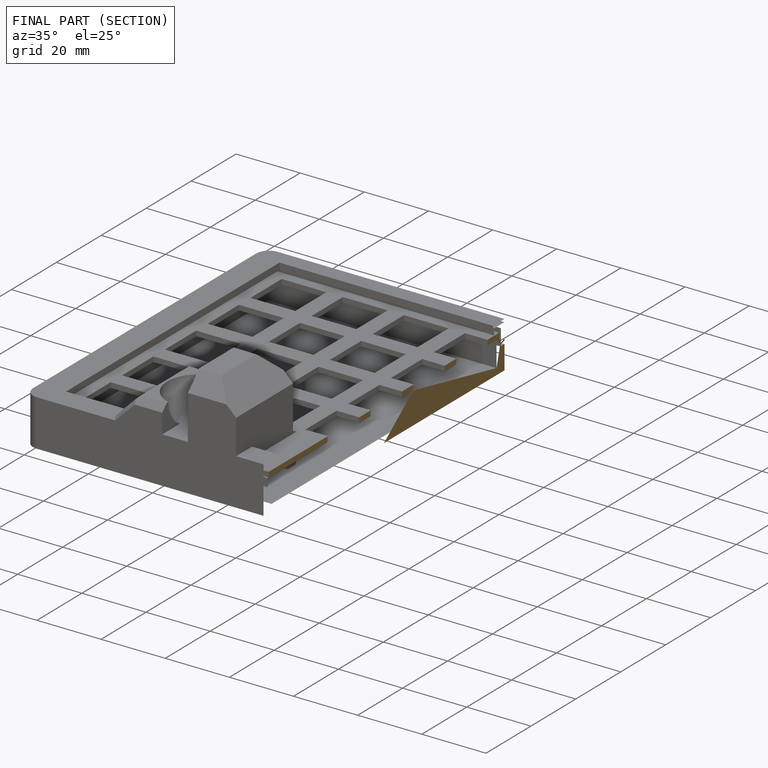
[diagram: finished part — half-section view (interior)]
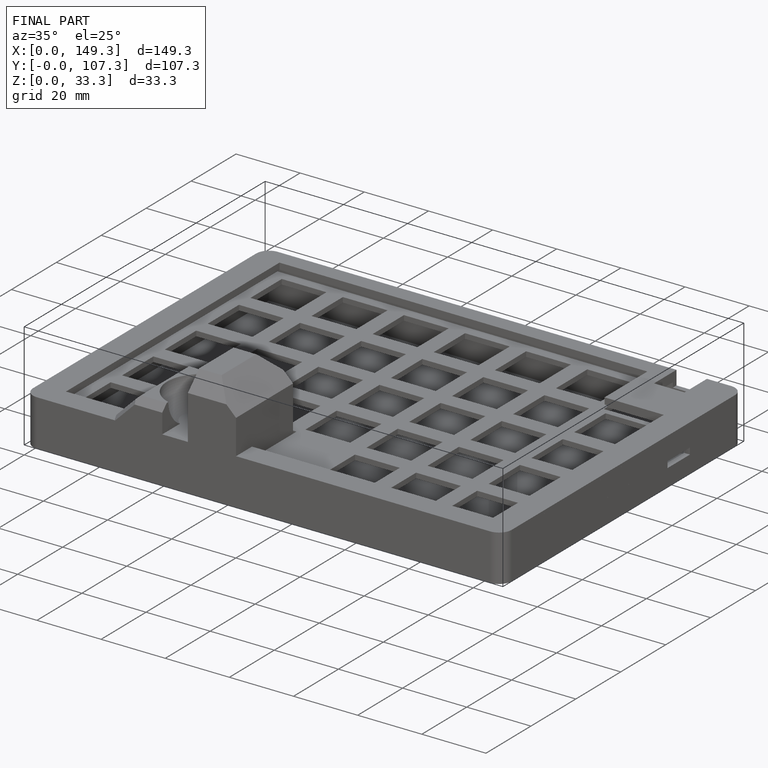
[diagram: finished part — iso view with bounding-box wireframe]
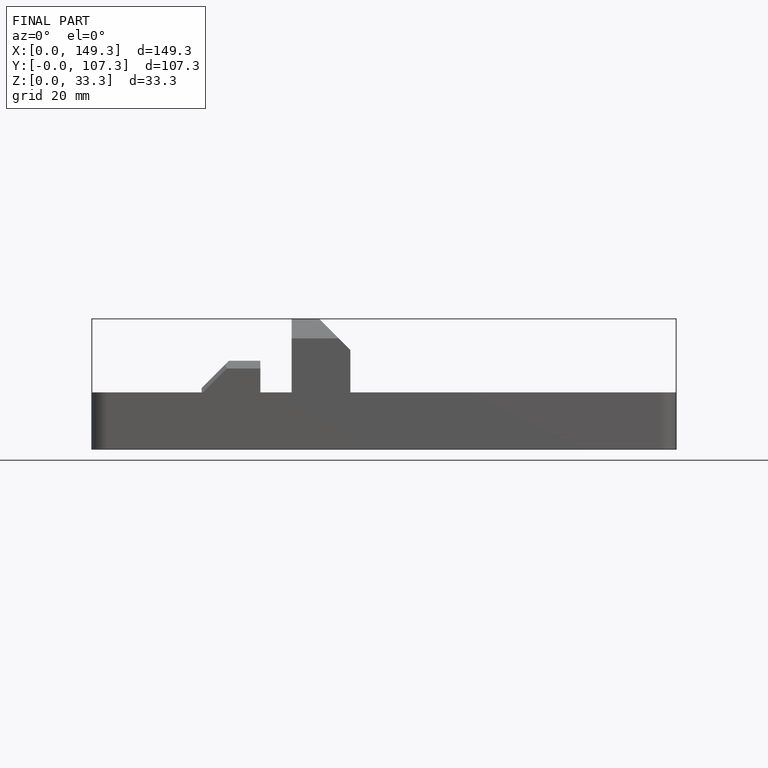
[diagram: finished part — front view with bounding-box wireframe]
